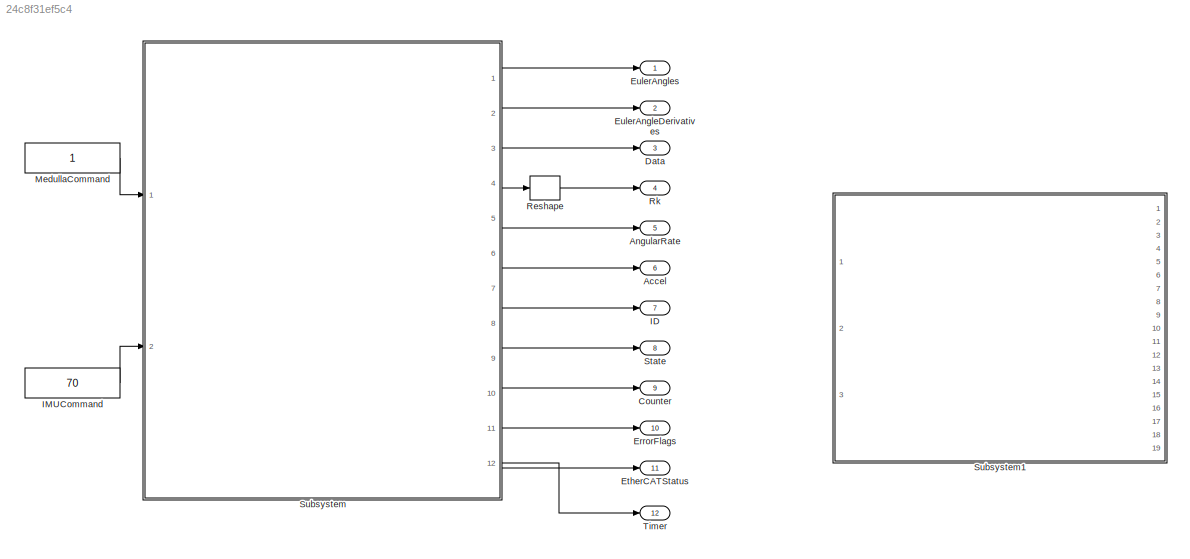
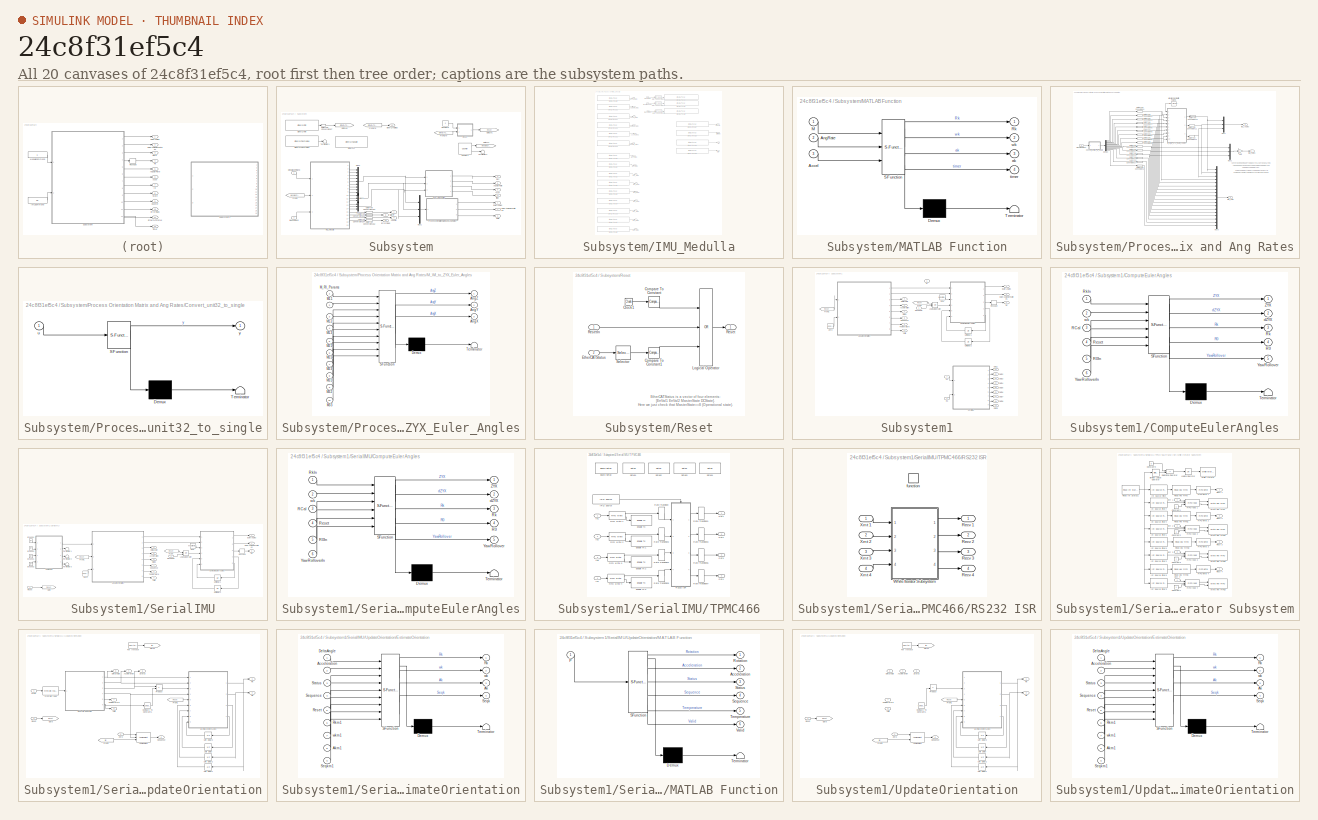
[diagram: thumbnail index - all 20 canvases of the model, root first then tree order]
MODEL slx_24c8f31ef5c4
KIND model
BLOCK [Outport] Accel
  IconDisplay = Port number
  Port = 6
BLOCK [Outport] AngularRate
  IconDisplay = Port number
  Port = 5
BLOCK [Outport] Counter
  IconDisplay = Port number
  Port = 9
BLOCK [Outport] Data
  IconDisplay = Port number
  Port = 3
BLOCK [Outport] ErrorFlags
  IconDisplay = Port number
  Port = 10
BLOCK [Outport] EtherCATStatus
  IconDisplay = Port number
  Port = 11
BLOCK [Outport] EulerAngleDerivatives
  IconDisplay = Port number
  Port = 2
BLOCK [Outport] EulerAngles
  IconDisplay = Port number
BLOCK [Outport] ID
  IconDisplay = Port number
  Port = 7
BLOCK [Constant] IMUCommand
  Value = 70
BLOCK [Constant] MedullaCommand
BLOCK [Reshape] Reshape
  Ports = [1, 1]
BLOCK [Outport] Rk
  IconDisplay = Port number
  Port = 4
BLOCK [Outport] State
  IconDisplay = Port number
  Port = 8
BLOCK [SubSystem] Subsystem
  FunctionWithSeparateData = off
  MaskHideContents = off
  MinAlgLoopOccurrences = off
  Opaque = off
  Ports = [2, 12]
  PropExecContextOutsideSubsystem = off
  RTWSystemCode = Auto
  RequestExecContextInheritance = off
BLOCK [Outport] Subsystem/Accel
  IconDisplay = Port number
  Port = 6
BLOCK [Outport] Subsystem/AngularRate
  IconDisplay = Port number
  Port = 5
BLOCK [Outport] Subsystem/Counter
  IconDisplay = Port number
  Port = 9
BLOCK [Reference] Subsystem/Counter2  REF=dspswit3/Counter
  CntDtype = double
  CountEvent = Free running
  CounterSize = User defined
  Direction = Up
  HitDtype = Logical
  HitValue = 32
  InitialCount = 0
  MaxCount = 65535
  Output = Count and Hit
  Ports = [0, 2]
  ResetInput = off
  SamplesPerFrame = 1
  SourceBlock = dspswit3/Counter
  SourceType = Counter
  Ts = .001
BLOCK [Outport] Subsystem/Data
  IconDisplay = Port number
  Port = 3
BLOCK [DataTypeConversion] Subsystem/Data Type Conversion152
  OutDataTypeStr = double
  RndMeth = Floor
  SaturateOnIntegerOverflow = off
BLOCK [DataTypeConversion] Subsystem/Data Type Conversion154
  OutDataTypeStr = double
  RndMeth = Floor
  SaturateOnIntegerOverflow = off
BLOCK [DataTypeConversion] Subsystem/Data Type Conversion161
  OutDataTypeStr = double
  RndMeth = Floor
  SaturateOnIntegerOverflow = off
BLOCK [DataTypeConversion] Subsystem/Data Type Conversion162
  OutDataTypeStr = double
  RndMeth = Floor
  SaturateOnIntegerOverflow = off
BLOCK [DataTypeConversion] Subsystem/Data Type Conversion97
  OutDataTypeStr = double
  RndMeth = Floor
  SaturateOnIntegerOverflow = off
BLOCK [Outport] Subsystem/ErrorFlags
  IconDisplay = Port number
  Port = 10
BLOCK [Reference] Subsystem/EtherCAT  REF=xpcethercatlib/EtherCAT Update 
  Ports = []
  Priority = 4
  SourceBlock = xpcethercatlib/EtherCAT Update
  SourceType = xpcethercat_update
  device_id = 0
  task_id_list = [1]
  task_priorities = [1500]
  task_rates = [1]
BLOCK [Reference] Subsystem/EtherCAT Init  REF=xpcethercatlib/EtherCAT Init 
  Ports = [0, 1]
  Priority = 0
  SourceBlock = xpcethercatlib/EtherCAT Init
  SourceType = xpcethercatinit
  config_file = 'microstrain-imu-box07-eni.xml'
  device_id = 0
  enaDC = on
  errRptLevel = 0
  pci_bus = 7
  pci_slot = 0
  sample_time = 0.001000
BLOCK [Reference] Subsystem/EtherCAT Rx Frames  REF=xpcethercatlib/EtherCAT Rx Frames 
  Ports = [0, 1]
  Priority = 1
  SourceBlock = xpcethercatlib/EtherCAT Rx Frames
  SourceType = xpcethercat_rcvframes
  device_id = 0
  sample_time = 0
BLOCK [Outport] Subsystem/EtherCATStatus
  IconDisplay = Port number
  Port = 11
BLOCK [Outport] Subsystem/EulerAngleDerivatives
  IconDisplay = Port number
  Port = 2
BLOCK [Outport] Subsystem/EulerAngles
  IconDisplay = Port number
BLOCK [From] Subsystem/From1
  GotoTag = MedullaCounter
BLOCK [From] Subsystem/From178
  GotoTag = EtherCATStatus
BLOCK [From] Subsystem/From179
  GotoTag = EtherCATStatus
BLOCK [Goto] Subsystem/Goto111
  GotoTag = MedullaCounter
BLOCK [Goto] Subsystem/Goto141
  GotoTag = Reset
BLOCK [Goto] Subsystem/Goto146
  GotoTag = EtherCATStatus
BLOCK [Outport] Subsystem/ID
  IconDisplay = Port number
  Port = 7
BLOCK [Inport] Subsystem/IMU Command
  IconDisplay = Port number
  Port = 2
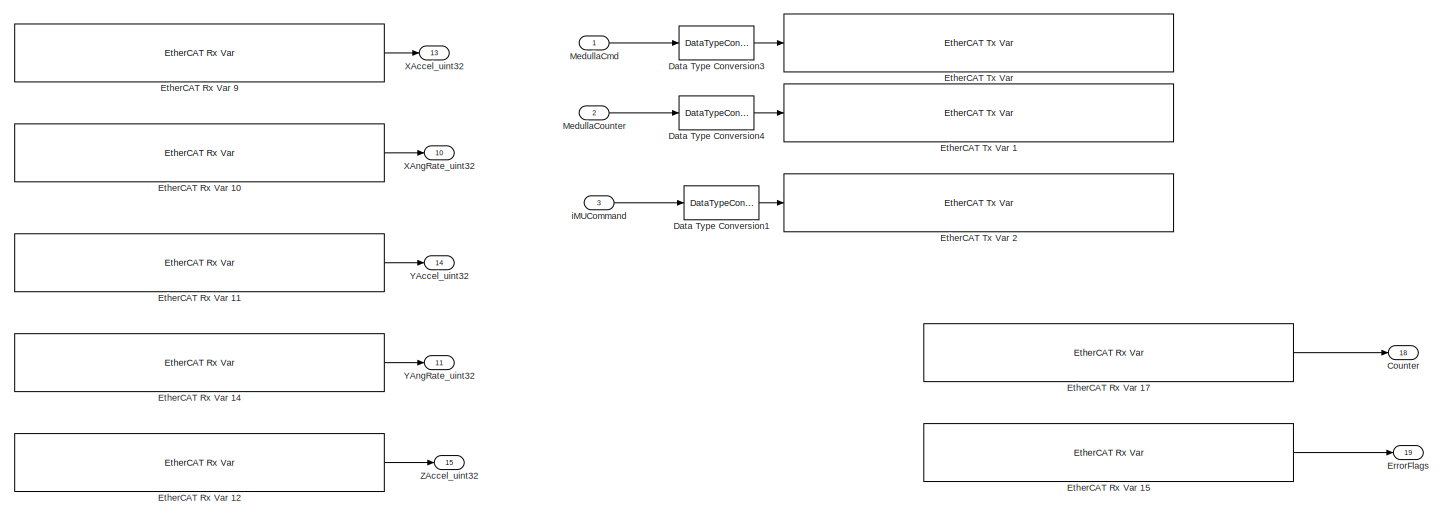
[diagram: Subsystem/IMU_Medulla - part 1/3, full width, top band]
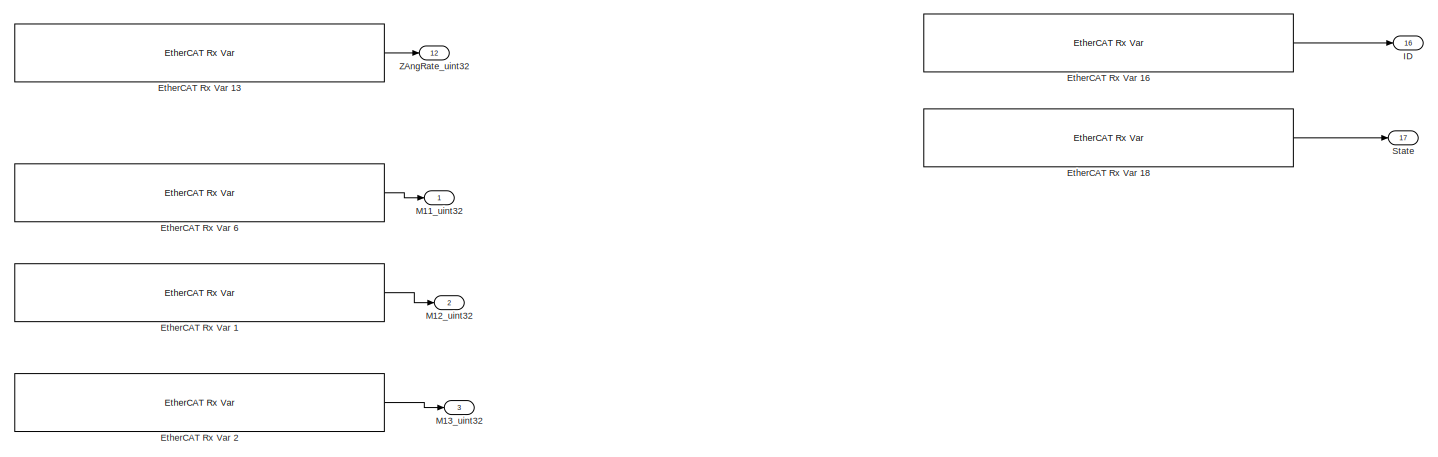
[diagram: Subsystem/IMU_Medulla - part 2/3, full width, middle band]
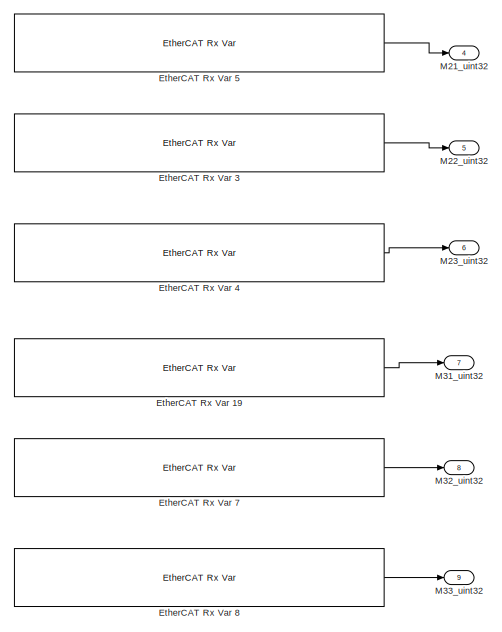
[diagram: Subsystem/IMU_Medulla - part 3/3, bottom left region]
BLOCK [SubSystem] Subsystem/IMU_Medulla
  FunctionWithSeparateData = off
  MaskHideContents = off
  MinAlgLoopOccurrences = off
  Opaque = off
  Ports = [3, 19]
  PropExecContextOutsideSubsystem = off
  RTWSystemCode = Auto
  RequestExecContextInheritance = off
BLOCK [Outport] Subsystem/IMU_Medulla/Counter
  IconDisplay = Port number
  Port = 18
BLOCK [DataTypeConversion] Subsystem/IMU_Medulla/Data Type Conversion1
  OutDataTypeStr = uint16
  RndMeth = Floor
  SaturateOnIntegerOverflow = off
BLOCK [DataTypeConversion] Subsystem/IMU_Medulla/Data Type Conversion3
  OutDataTypeStr = uint8
  RndMeth = Floor
  SaturateOnIntegerOverflow = off
BLOCK [DataTypeConversion] Subsystem/IMU_Medulla/Data Type Conversion4
  OutDataTypeStr = uint16
  RndMeth = Floor
  SaturateOnIntegerOverflow = off
BLOCK [Outport] Subsystem/IMU_Medulla/ErrorFlags
  IconDisplay = Port number
  Port = 19
BLOCK [Reference] Subsystem/IMU_Medulla/EtherCAT Rx Var 1  REF=xpcethercatlib/EtherCAT Rx Var 
  Ports = [0, 1]
  Priority = 2
  SourceBlock = xpcethercatlib/EtherCAT Rx Var
  SourceType = xpcethercat_rx_var
  device_id = 0
  sample_time = 0.001000
  sig_dim = 1
  sig_name = Box 7 (ATRIAS 2.1 Microstrain IMU (Medulla 1.5)).M.M12
  sig_offset = 720
  sig_type = uint32
  type_size = 32
BLOCK [Reference] Subsystem/IMU_Medulla/EtherCAT Rx Var 10  REF=xpcethercatlib/EtherCAT Rx Var 
  Ports = [0, 1]
  Priority = 2
  SourceBlock = xpcethercatlib/EtherCAT Rx Var
  SourceType = xpcethercat_rx_var
  device_id = 0
  sample_time = 0.001000
  sig_dim = 1
  sig_name = Box 7 (ATRIAS 2.1 Microstrain IMU (Medulla 1.5)).Xaxes.XAngRate
  sig_offset = 496
  sig_type = uint32
  type_size = 32
BLOCK [Reference] Subsystem/IMU_Medulla/EtherCAT Rx Var 11  REF=xpcethercatlib/EtherCAT Rx Var 
  Ports = [0, 1]
  Priority = 2
  SourceBlock = xpcethercatlib/EtherCAT Rx Var
  SourceType = xpcethercat_rx_var
  device_id = 0
  sample_time = 0.001000
  sig_dim = 1
  sig_name = Box 7 (ATRIAS 2.1 Microstrain IMU (Medulla 1.5)).Yaxes.YAccel
  sig_offset = 592
  sig_type = uint32
  type_size = 32
BLOCK [Reference] Subsystem/IMU_Medulla/EtherCAT Rx Var 12  REF=xpcethercatlib/EtherCAT Rx Var 
  Ports = [0, 1]
  Priority = 2
  SourceBlock = xpcethercatlib/EtherCAT Rx Var
  SourceType = xpcethercat_rx_var
  device_id = 0
  sample_time = 0.001000
  sig_dim = 1
  sig_name = Box 7 (ATRIAS 2.1 Microstrain IMU (Medulla 1.5)).Zaxes.ZAccel
  sig_offset = 656
  sig_type = uint32
  type_size = 32
BLOCK [Reference] Subsystem/IMU_Medulla/EtherCAT Rx Var 13  REF=xpcethercatlib/EtherCAT Rx Var 
  Ports = [0, 1]
  Priority = 2
  SourceBlock = xpcethercatlib/EtherCAT Rx Var
  SourceType = xpcethercat_rx_var
  device_id = 0
  sample_time = 0.001000
  sig_dim = 1
  sig_name = Box 7 (ATRIAS 2.1 Microstrain IMU (Medulla 1.5)).Zaxes.ZAngRate
  sig_offset = 624
  sig_type = uint32
  type_size = 32
BLOCK [Reference] Subsystem/IMU_Medulla/EtherCAT Rx Var 14  REF=xpcethercatlib/EtherCAT Rx Var 
  Ports = [0, 1]
  Priority = 2
  SourceBlock = xpcethercatlib/EtherCAT Rx Var
  SourceType = xpcethercat_rx_var
  device_id = 0
  sample_time = 0.001000
  sig_dim = 1
  sig_name = Box 7 (ATRIAS 2.1 Microstrain IMU (Medulla 1.5)).Yaxes.YAngRate
  sig_offset = 560
  sig_type = uint32
  type_size = 32
BLOCK [Reference] Subsystem/IMU_Medulla/EtherCAT Rx Var 15  REF=xpcethercatlib/EtherCAT Rx Var 
  Ports = [0, 1]
  Priority = 2
  SourceBlock = xpcethercatlib/EtherCAT Rx Var
  SourceType = xpcethercat_rx_var
  device_id = 0
  sample_time = 0.001000
  sig_dim = 1
  sig_name = Box 7 (ATRIAS 2.1 Microstrain IMU (Medulla 1.5)).uController Status.Error Flags
  sig_offset = 488
  sig_type = uint8
  type_size = 8
BLOCK [Reference] Subsystem/IMU_Medulla/EtherCAT Rx Var 16  REF=xpcethercatlib/EtherCAT Rx Var 
  Ports = [0, 1]
  Priority = 2
  SourceBlock = xpcethercatlib/EtherCAT Rx Var
  SourceType = xpcethercat_rx_var
  device_id = 0
  sample_time = 0.001000
  sig_dim = 1
  sig_name = Box 7 (ATRIAS 2.1 Microstrain IMU (Medulla 1.5)).uController Status.ID
  sig_offset = 464
  sig_type = uint8
  type_size = 8
BLOCK [Reference] Subsystem/IMU_Medulla/EtherCAT Rx Var 17  REF=xpcethercatlib/EtherCAT Rx Var 
  Ports = [0, 1]
  Priority = 2
  SourceBlock = xpcethercatlib/EtherCAT Rx Var
  SourceType = xpcethercat_rx_var
  device_id = 0
  sample_time = 0.001000
  sig_dim = 1
  sig_name = Box 7 (ATRIAS 2.1 Microstrain IMU (Medulla 1.5)).uController Status.Counter
  sig_offset = 480
  sig_type = uint8
  type_size = 8
BLOCK [Reference] Subsystem/IMU_Medulla/EtherCAT Rx Var 18  REF=xpcethercatlib/EtherCAT Rx Var 
  Ports = [0, 1]
  Priority = 2
  SourceBlock = xpcethercatlib/EtherCAT Rx Var
  SourceType = xpcethercat_rx_var
  device_id = 0
  sample_time = 0.001000
  sig_dim = 1
  sig_name = Box 7 (ATRIAS 2.1 Microstrain IMU (Medulla 1.5)).uController Status.State
  sig_offset = 472
  sig_type = uint8
  type_size = 8
BLOCK [Reference] Subsystem/IMU_Medulla/EtherCAT Rx Var 19  REF=xpcethercatlib/EtherCAT Rx Var 
  Ports = [0, 1]
  Priority = 2
  SourceBlock = xpcethercatlib/EtherCAT Rx Var
  SourceType = xpcethercat_rx_var
  device_id = 0
  sample_time = 0.001000
  sig_dim = 1
  sig_name = Box 7 (ATRIAS 2.1 Microstrain IMU (Medulla 1.5)).M.M31
  sig_offset = 880
  sig_type = uint32
  type_size = 32
BLOCK [Reference] Subsystem/IMU_Medulla/EtherCAT Rx Var 2  REF=xpcethercatlib/EtherCAT Rx Var 
  Ports = [0, 1]
  Priority = 2
  SourceBlock = xpcethercatlib/EtherCAT Rx Var
  SourceType = xpcethercat_rx_var
  device_id = 0
  sample_time = 0.001000
  sig_dim = 1
  sig_name = Box 7 (ATRIAS 2.1 Microstrain IMU (Medulla 1.5)).M.M13
  sig_offset = 752
  sig_type = uint32
  type_size = 32
BLOCK [Reference] Subsystem/IMU_Medulla/EtherCAT Rx Var 3  REF=xpcethercatlib/EtherCAT Rx Var 
  Ports = [0, 1]
  Priority = 2
  SourceBlock = xpcethercatlib/EtherCAT Rx Var
  SourceType = xpcethercat_rx_var
  device_id = 0
  sample_time = 0.001000
  sig_dim = 1
  sig_name = Box 7 (ATRIAS 2.1 Microstrain IMU (Medulla 1.5)).M.M22
  sig_offset = 816
  sig_type = uint32
  type_size = 32
BLOCK [Reference] Subsystem/IMU_Medulla/EtherCAT Rx Var 4  REF=xpcethercatlib/EtherCAT Rx Var 
  Ports = [0, 1]
  Priority = 2
  SourceBlock = xpcethercatlib/EtherCAT Rx Var
  SourceType = xpcethercat_rx_var
  device_id = 0
  sample_time = 0.001000
  sig_dim = 1
  sig_name = Box 7 (ATRIAS 2.1 Microstrain IMU (Medulla 1.5)).M.M23
  sig_offset = 848
  sig_type = uint32
  type_size = 32
BLOCK [Reference] Subsystem/IMU_Medulla/EtherCAT Rx Var 5  REF=xpcethercatlib/EtherCAT Rx Var 
  Ports = [0, 1]
  Priority = 2
  SourceBlock = xpcethercatlib/EtherCAT Rx Var
  SourceType = xpcethercat_rx_var
  device_id = 0
  sample_time = 0.001000
  sig_dim = 1
  sig_name = Box 7 (ATRIAS 2.1 Microstrain IMU (Medulla 1.5)).M.M21
  sig_offset = 784
  sig_type = uint32
  type_size = 32
BLOCK [Reference] Subsystem/IMU_Medulla/EtherCAT Rx Var 6  REF=xpcethercatlib/EtherCAT Rx Var 
  Ports = [0, 1]
  Priority = 2
  SourceBlock = xpcethercatlib/EtherCAT Rx Var
  SourceType = xpcethercat_rx_var
  device_id = 0
  sample_time = 0.001000
  sig_dim = 1
  sig_name = Box 7 (ATRIAS 2.1 Microstrain IMU (Medulla 1.5)).M.M11
  sig_offset = 688
  sig_type = uint32
  type_size = 32
BLOCK [Reference] Subsystem/IMU_Medulla/EtherCAT Rx Var 7  REF=xpcethercatlib/EtherCAT Rx Var 
  Ports = [0, 1]
  Priority = 2
  SourceBlock = xpcethercatlib/EtherCAT Rx Var
  SourceType = xpcethercat_rx_var
  device_id = 0
  sample_time = 0.001000
  sig_dim = 1
  sig_name = Box 7 (ATRIAS 2.1 Microstrain IMU (Medulla 1.5)).M.M32
  sig_offset = 912
  sig_type = uint32
  type_size = 32
BLOCK [Reference] Subsystem/IMU_Medulla/EtherCAT Rx Var 8  REF=xpcethercatlib/EtherCAT Rx Var 
  Ports = [0, 1]
  Priority = 2
  SourceBlock = xpcethercatlib/EtherCAT Rx Var
  SourceType = xpcethercat_rx_var
  device_id = 0
  sample_time = 0.001000
  sig_dim = 1
  sig_name = Box 7 (ATRIAS 2.1 Microstrain IMU (Medulla 1.5)).M.M33
  sig_offset = 944
  sig_type = uint32
  type_size = 32
BLOCK [Reference] Subsystem/IMU_Medulla/EtherCAT Rx Var 9  REF=xpcethercatlib/EtherCAT Rx Var 
  Ports = [0, 1]
  Priority = 2
  SourceBlock = xpcethercatlib/EtherCAT Rx Var
  SourceType = xpcethercat_rx_var
  device_id = 0
  sample_time = 0.001000
  sig_dim = 1
  sig_name = Box 7 (ATRIAS 2.1 Microstrain IMU (Medulla 1.5)).Xaxes.XAccel
  sig_offset = 528
  sig_type = uint32
  type_size = 32
BLOCK [Reference] Subsystem/IMU_Medulla/EtherCAT Tx Var   REF=xpcethercatlib/EtherCAT Tx Var 
  Ports = [1]
  Priority = 3
  SourceBlock = xpcethercatlib/EtherCAT Tx Var
  SourceType = xpcethercat_tx_var
  device_id = 0
  sample_time = 0.001000
  sig_dim = 1
  sig_name = Box 7 (ATRIAS 2.1 Microstrain IMU (Medulla 1.5)).uControllerInput.Command
  sig_offset = 464
  sig_type = uint8
  type_size = 8
BLOCK [Reference] Subsystem/IMU_Medulla/EtherCAT Tx Var 1  REF=xpcethercatlib/EtherCAT Tx Var 
  Ports = [1]
  Priority = 3
  SourceBlock = xpcethercatlib/EtherCAT Tx Var
  SourceType = xpcethercat_tx_var
  device_id = 0
  sample_time = 0.001000
  sig_dim = 1
  sig_name = Box 7 (ATRIAS 2.1 Microstrain IMU (Medulla 1.5)).uControllerInput.Counter
  sig_offset = 472
  sig_type = uint16
  type_size = 16
BLOCK [Reference] Subsystem/IMU_Medulla/EtherCAT Tx Var 2  REF=xpcethercatlib/EtherCAT Tx Var 
  Ports = [1]
  Priority = 3
  SourceBlock = xpcethercatlib/EtherCAT Tx Var
  SourceType = xpcethercat_tx_var
  device_id = 0
  sample_time = 0.001000
  sig_dim = 1
  sig_name = Box 7 (ATRIAS 2.1 Microstrain IMU (Medulla 1.5)).uControllerInput.IMU_cmd
  sig_offset = 488
  sig_type = uint16
  type_size = 16
BLOCK [Outport] Subsystem/IMU_Medulla/ID
  IconDisplay = Port number
  Port = 16
BLOCK [Outport] Subsystem/IMU_Medulla/M11_uint32
  IconDisplay = Port number
BLOCK [Outport] Subsystem/IMU_Medulla/M12_uint32
  IconDisplay = Port number
  Port = 2
BLOCK [Outport] Subsystem/IMU_Medulla/M13_uint32
  IconDisplay = Port number
  Port = 3
BLOCK [Outport] Subsystem/IMU_Medulla/M21_uint32
  IconDisplay = Port number
  Port = 4
BLOCK [Outport] Subsystem/IMU_Medulla/M22_uint32
  IconDisplay = Port number
  Port = 5
BLOCK [Outport] Subsystem/IMU_Medulla/M23_uint32
  IconDisplay = Port number
  Port = 6
BLOCK [Outport] Subsystem/IMU_Medulla/M31_uint32
  IconDisplay = Port number
  Port = 7
BLOCK [Outport] Subsystem/IMU_Medulla/M32_uint32
  IconDisplay = Port number
  Port = 8
BLOCK [Outport] Subsystem/IMU_Medulla/M33_uint32
  IconDisplay = Port number
  Port = 9
BLOCK [Inport] Subsystem/IMU_Medulla/MedullaCmd
  IconDisplay = Port number
BLOCK [Inport] Subsystem/IMU_Medulla/MedullaCounter
  IconDisplay = Port number
  Port = 2
BLOCK [Outport] Subsystem/IMU_Medulla/State
  IconDisplay = Port number
  Port = 17
BLOCK [Outport] Subsystem/IMU_Medulla/XAccel_uint32
  IconDisplay = Port number
  Port = 13
BLOCK [Outport] Subsystem/IMU_Medulla/XAngRate_uint32
  IconDisplay = Port number
  Port = 10
BLOCK [Outport] Subsystem/IMU_Medulla/YAccel_uint32
  IconDisplay = Port number
  Port = 14
BLOCK [Outport] Subsystem/IMU_Medulla/YAngRate_uint32
  IconDisplay = Port number
  Port = 11
BLOCK [Outport] Subsystem/IMU_Medulla/ZAccel_uint32
  IconDisplay = Port number
  Port = 15
BLOCK [Outport] Subsystem/IMU_Medulla/ZAngRate_uint32
  IconDisplay = Port number
  Port = 12
BLOCK [Inport] Subsystem/IMU_Medulla/iMUCommand
  IconDisplay = Port number
  Port = 3
BLOCK [SubSystem] Subsystem/MATLAB Function
  ErrorFcn = Stateflow.Translate.translate
  FunctionWithSeparateData = off
  MaskHideContents = off
  MinAlgLoopOccurrences = off
  Opaque = off
  PermitHierarchicalResolution = ExplicitOnly
  Ports = [3, 4]
  PropExecContextOutsideSubsystem = off
  RTWSystemCode = Auto
  RequestExecContextInheritance = off
  SFBlockType = MATLAB Function
  TreatAsAtomicUnit = on
BLOCK [Demux] Subsystem/MATLAB Function/ Demux 
  Outputs = 1
  Ports = [1, 1]
BLOCK [S-Function] Subsystem/MATLAB Function/ SFunction 
  EnableBusSupport = on
  FunctionName = sf_sfun
  PortCounts = [3 5]
  Ports = [3, 5]
  Tag = Stateflow S-Function MicrostrainIMUTest02 3
BLOCK [Terminator] Subsystem/MATLAB Function/ Terminator 
BLOCK [Inport] Subsystem/MATLAB Function/Accel
  IconDisplay = Port number
  Port = 3
BLOCK [Inport] Subsystem/MATLAB Function/AngRate
  IconDisplay = Port number
  Port = 2
BLOCK [Inport] Subsystem/MATLAB Function/M
  IconDisplay = Port number
BLOCK [Outport] Subsystem/MATLAB Function/Rk
  IconDisplay = Port number
BLOCK [Outport] Subsystem/MATLAB Function/ak
  IconDisplay = Port number
  Port = 3
BLOCK [Outport] Subsystem/MATLAB Function/timer
  IconDisplay = Port number
  Port = 4
BLOCK [Outport] Subsystem/MATLAB Function/wk
  IconDisplay = Port number
  Port = 2
BLOCK [Inport] Subsystem/Medulla Command
  IconDisplay = Port number
BLOCK [Mux] Subsystem/Mux1
  DisplayOption = bar
  Inputs = 3
  Ports = [3, 1]
BLOCK [Mux] Subsystem/Mux2
  DisplayOption = bar
  Inputs = 9
  Ports = [9, 1]
BLOCK [Mux] Subsystem/Mux3
  DisplayOption = bar
  Inputs = 3
  Ports = [3, 1]
BLOCK [Mux] Subsystem/Mux4
  DisplayOption = bar
  Inputs = 3
  Ports = [3, 1]
BLOCK [SubSystem] Subsystem/Process Orientation Matrix and Ang Rates
  FunctionWithSeparateData = off
  MaskHideContents = off
  MinAlgLoopOccurrences = off
  Opaque = off
  Ports = [1, 3]
  PropExecContextOutsideSubsystem = off
  RTWSystemCode = Auto
  RequestExecContextInheritance = off
BLOCK [SubSystem] Subsystem/Process Orientation Matrix and Ang Rates/Convert_unit32_to_single
  ErrorFcn = Stateflow.Translate.translate
  FunctionWithSeparateData = off
  MaskHideContents = off
  MinAlgLoopOccurrences = off
  Opaque = off
  PermitHierarchicalResolution = ExplicitOnly
  Ports = [1, 1]
  PropExecContextOutsideSubsystem = off
  RTWSystemCode = Auto
  RequestExecContextInheritance = off
  SFBlockType = MATLAB Function
  TreatAsAtomicUnit = on
BLOCK [Demux] Subsystem/Process Orientation Matrix and Ang Rates/Convert_unit32_to_single/ Demux 
  Outputs = 1
  Ports = [1, 1]
BLOCK [S-Function] Subsystem/Process Orientation Matrix and Ang Rates/Convert_unit32_to_single/ SFunction 
  EnableBusSupport = on
  FunctionName = sf_sfun
  PortCounts = [1 2]
  Ports = [1, 2]
  Tag = Stateflow S-Function MicrostrainIMUTest02 32
BLOCK [Terminator] Subsystem/Process Orientation Matrix and Ang Rates/Convert_unit32_to_single/ Terminator 
BLOCK [Inport] Subsystem/Process Orientation Matrix and Ang Rates/Convert_unit32_to_single/u
  IconDisplay = Port number
BLOCK [Outport] Subsystem/Process Orientation Matrix and Ang Rates/Convert_unit32_to_single/y
  IconDisplay = Port number
BLOCK [DataTypeConversion] Subsystem/Process Orientation Matrix and Ang Rates/Data Type Conversion1
  OutDataTypeStr = double
  RndMeth = Floor
  SaturateOnIntegerOverflow = off
BLOCK [DataTypeConversion] Subsystem/Process Orientation Matrix and Ang Rates/Data Type Conversion10
  OutDataTypeStr = double
  RndMeth = Floor
  SaturateOnIntegerOverflow = off
BLOCK [DataTypeConversion] Subsystem/Process Orientation Matrix and Ang Rates/Data Type Conversion11
  OutDataTypeStr = double
  RndMeth = Floor
  SaturateOnIntegerOverflow = off
BLOCK [DataTypeConversion] Subsystem/Process Orientation Matrix and Ang Rates/Data Type Conversion12
  OutDataTypeStr = double
  RndMeth = Floor
  SaturateOnIntegerOverflow = off
BLOCK [DataTypeConversion] Subsystem/Process Orientation Matrix and Ang Rates/Data Type Conversion13
  OutDataTypeStr = double
  RndMeth = Floor
  SaturateOnIntegerOverflow = off
BLOCK [DataTypeConversion] Subsystem/Process Orientation Matrix and Ang Rates/Data Type Conversion14
  OutDataTypeStr = double
  RndMeth = Floor
  SaturateOnIntegerOverflow = off
BLOCK [DataTypeConversion] Subsystem/Process Orientation Matrix and Ang Rates/Data Type Conversion15
  OutDataTypeStr = double
  RndMeth = Floor
  SaturateOnIntegerOverflow = off
BLOCK [DataTypeConversion] Subsystem/Process Orientation Matrix and Ang Rates/Data Type Conversion16
  OutDataTypeStr = double
  RndMeth = Floor
  SaturateOnIntegerOverflow = off
BLOCK [DataTypeConversion] Subsystem/Process Orientation Matrix and Ang Rates/Data Type Conversion17
  OutDataTypeStr = double
  RndMeth = Floor
  SaturateOnIntegerOverflow = off
BLOCK [DataTypeConversion] Subsystem/Process Orientation Matrix and Ang Rates/Data Type Conversion18
  OutDataTypeStr = double
  RndMeth = Floor
  SaturateOnIntegerOverflow = off
BLOCK [DataTypeConversion] Subsystem/Process Orientation Matrix and Ang Rates/Data Type Conversion2
  OutDataTypeStr = double
  RndMeth = Floor
  SaturateOnIntegerOverflow = off
BLOCK [DataTypeConversion] Subsystem/Process Orientation Matrix and Ang Rates/Data Type Conversion3
  OutDataTypeStr = double
  RndMeth = Floor
  SaturateOnIntegerOverflow = off
BLOCK [DataTypeConversion] Subsystem/Process Orientation Matrix and Ang Rates/Data Type Conversion4
  OutDataTypeStr = double
  RndMeth = Floor
  SaturateOnIntegerOverflow = off
BLOCK [DataTypeConversion] Subsystem/Process Orientation Matrix and Ang Rates/Data Type Conversion5
  OutDataTypeStr = double
  RndMeth = Floor
  SaturateOnIntegerOverflow = off
BLOCK [DataTypeConversion] Subsystem/Process Orientation Matrix and Ang Rates/Data Type Conversion6
  OutDataTypeStr = double
  RndMeth = Floor
  SaturateOnIntegerOverflow = off
BLOCK [DataTypeConversion] Subsystem/Process Orientation Matrix and Ang Rates/Data Type Conversion7
  OutDataTypeStr = double
  RndMeth = Floor
  SaturateOnIntegerOverflow = off
BLOCK [DataTypeConversion] Subsystem/Process Orientation Matrix and Ang Rates/Data Type Conversion8
  OutDataTypeStr = double
  RndMeth = Floor
  SaturateOnIntegerOverflow = off
BLOCK [DataTypeConversion] Subsystem/Process Orientation Matrix and Ang Rates/Data Type Conversion9
  OutDataTypeStr = double
  RndMeth = Floor
  SaturateOnIntegerOverflow = off
BLOCK [Demux] Subsystem/Process Orientation Matrix and Ang Rates/Demux
  DisplayOption = bar
  Outputs = 15
  Ports = [1, 15]
BLOCK [Gain] Subsystem/Process Orientation Matrix and Ang Rates/Gain
  Gain = -1
  OutDataTypeStr = Inherit: Inherit via internal rule
  ParamDataTypeStr = Inherit: Inherit via internal rule
  SaturateOnIntegerOverflow = off
BLOCK [Outport] Subsystem/Process Orientation Matrix and Ang Rates/IMU_Angles
  IconDisplay = Port number
BLOCK [Outport] Subsystem/Process Orientation Matrix and Ang Rates/IMU_Rates
  IconDisplay = Port number
  Port = 2
BLOCK [Outport] Subsystem/Process Orientation Matrix and Ang Rates/IMU_data
  IconDisplay = Port number
  Port = 3
BLOCK [SubSystem] Subsystem/Process Orientation Matrix and Ang Rates/M_WI_to_ZYX_Euler_Angles
  ErrorFcn = Stateflow.Translate.translate
  FunctionWithSeparateData = off
  MaskHideContents = off
  MinAlgLoopOccurrences = off
  Opaque = off
  PermitHierarchicalResolution = ExplicitOnly
  Ports = [10, 3]
  PropExecContextOutsideSubsystem = off
  RTWSystemCode = Auto
  RequestExecContextInheritance = off
  SFBlockType = MATLAB Function
  TreatAsAtomicUnit = on
BLOCK [Demux] Subsystem/Process Orientation Matrix and Ang Rates/M_WI_to_ZYX_Euler_Angles/ Demux 
  Outputs = 1
  Ports = [1, 1]
BLOCK [S-Function] Subsystem/Process Orientation Matrix and Ang Rates/M_WI_to_ZYX_Euler_Angles/ SFunction 
  EnableBusSupport = on
  FunctionName = sf_sfun
  PortCounts = [10 4]
  Ports = [10, 4]
  Tag = Stateflow S-Function MicrostrainIMUTest02 33
BLOCK [Terminator] Subsystem/Process Orientation Matrix and Ang Rates/M_WI_to_ZYX_Euler_Angles/ Terminator 
BLOCK [Outport] Subsystem/Process Orientation Matrix and Ang Rates/M_WI_to_ZYX_Euler_Angles/AngX
  IconDisplay = Port number
  Port = 3
BLOCK [Outport] Subsystem/Process Orientation Matrix and Ang Rates/M_WI_to_ZYX_Euler_Angles/AngY
  IconDisplay = Port number
  Port = 2
BLOCK [Outport] Subsystem/Process Orientation Matrix and Ang Rates/M_WI_to_ZYX_Euler_Angles/AngZ
  IconDisplay = Port number
BLOCK [Inport] Subsystem/Process Orientation Matrix and Ang Rates/M_WI_to_ZYX_Euler_Angles/M11
  IconDisplay = Port number
  Port = 2
BLOCK [Inport] Subsystem/Process Orientation Matrix and Ang Rates/M_WI_to_ZYX_Euler_Angles/M12
  IconDisplay = Port number
  Port = 3
BLOCK [Inport] Subsystem/Process Orientation Matrix and Ang Rates/M_WI_to_ZYX_Euler_Angles/M13
  IconDisplay = Port number
  Port = 4
BLOCK [Inport] Subsystem/Process Orientation Matrix and Ang Rates/M_WI_to_ZYX_Euler_Angles/M21
  IconDisplay = Port number
  Port = 5
BLOCK [Inport] Subsystem/Process Orientation Matrix and Ang Rates/M_WI_to_ZYX_Euler_Angles/M22
  IconDisplay = Port number
  Port = 6
BLOCK [Inport] Subsystem/Process Orientation Matrix and Ang Rates/M_WI_to_ZYX_Euler_Angles/M23
  IconDisplay = Port number
  Port = 7
BLOCK [Inport] Subsystem/Process Orientation Matrix and Ang Rates/M_WI_to_ZYX_Euler_Angles/M31
  IconDisplay = Port number
  Port = 8
BLOCK [Inport] Subsystem/Process Orientation Matrix and Ang Rates/M_WI_to_ZYX_Euler_Angles/M32
  IconDisplay = Port number
  Port = 9
BLOCK [Inport] Subsystem/Process Orientation Matrix and Ang Rates/M_WI_to_ZYX_Euler_Angles/M33
  IconDisplay = Port number
  Port = 10
BLOCK [Inport] Subsystem/Process Orientation Matrix and Ang Rates/M_WI_to_ZYX_Euler_Angles/M_RI_Params
  IconDisplay = Port number
BLOCK [Inport] Subsystem/Process Orientation Matrix and Ang Rates/MedullaOutput
  IconDisplay = Port number
BLOCK [Constant] Subsystem/Process Orientation Matrix and Ang Rates/MisalignmentMatrixParams
  Value = IMU_Alignment_Params
BLOCK [Mux] Subsystem/Process Orientation Matrix and Ang Rates/Mux1
  DisplayOption = bar
  Inputs = 3
  Ports = [3, 1]
BLOCK [Mux] Subsystem/Process Orientation Matrix and Ang Rates/Mux2
  DisplayOption = bar
  Inputs = 3
  Ports = [3, 1]
BLOCK [Mux] Subsystem/Process Orientation Matrix and Ang Rates/Mux3
  DisplayOption = bar
  Inputs = 18
  Ports = [18, 1]
BLOCK [SubSystem] Subsystem/Reset
  FunctionWithSeparateData = off
  MaskHideContents = off
  MinAlgLoopOccurrences = off
  Opaque = off
  Ports = [2, 1]
  PropExecContextOutsideSubsystem = off
  RTWSystemCode = Auto
  RequestExecContextInheritance = off
BLOCK [Clock] Subsystem/Reset/Clock1
BLOCK [Reference] Subsystem/Reset/Compare To Constant  REF=simulink/Logic and Bit
Operations/Compare
To Constant
  OutDataTypeStr = uint8
  Ports = [1, 1]
  SourceBlock = simulink/Logic and Bit\nOperations/Compare\nTo Constant
  SourceType = Compare To Constant
  ZeroCross = on
  const = 2.0
  relop = <=
BLOCK [Reference] Subsystem/Reset/Compare To Constant1  REF=simulink/Logic and Bit
Operations/Compare
To Constant
  OutDataTypeStr = uint8
  Ports = [1, 1]
  SourceBlock = simulink/Logic and Bit\nOperations/Compare\nTo Constant
  SourceType = Compare To Constant
  ZeroCross = on
  const = 8
  relop = ~=
BLOCK [Inport] Subsystem/Reset/EtherCATStatus
  IconDisplay = Port number
  Port = 2
BLOCK [Logic] Subsystem/Reset/Logical Operator
  AllPortsSameDT = off
  Inputs = 3
  Operator = OR
  OutDataTypeStr = boolean
  Ports = [3, 1]
BLOCK [Outport] Subsystem/Reset/Reset
  IconDisplay = Port number
BLOCK [Inport] Subsystem/Reset/ResetIn
  IconDisplay = Port number
BLOCK [Selector] Subsystem/Reset/Selector
  IndexOptions = Index vector (dialog)
  Indices = [3]
  InputPortWidth = 4
  OutputSizes = 1
  Ports = [1, 1]
BLOCK [Constant] Subsystem/ResetDAQ
  Value = 0
BLOCK [Outport] Subsystem/Rk1
  IconDisplay = Port number
  Port = 4
BLOCK [Outport] Subsystem/State
  IconDisplay = Port number
  Port = 8
BLOCK [Terminator] Subsystem/Terminator1
BLOCK [Terminator] Subsystem/Terminator2
BLOCK [Outport] Subsystem/timer
  IconDisplay = Port number
  Port = 12
BLOCK [SubSystem] Subsystem1
  Commented = on
  FunctionWithSeparateData = off
  MaskHideContents = off
  MinAlgLoopOccurrences = off
  Opaque = off
  Ports = [3, 19]
  PropExecContextOutsideSubsystem = off
  RTWSystemCode = Auto
  RequestExecContextInheritance = off
BLOCK [Outport] Subsystem1/Acceleration
  IconDisplay = Port number
  Port = 6
BLOCK [SubSystem] Subsystem1/ComputeEulerAngles
  ErrorFcn = Stateflow.Translate.translate
  FunctionWithSeparateData = off
  MaskHideContents = off
  MinAlgLoopOccurrences = off
  Opaque = off
  PermitHierarchicalResolution = ExplicitOnly
  Ports = [6, 5]
  PropExecContextOutsideSubsystem = off
  RTWSystemCode = Auto
  RequestExecContextInheritance = off
  SFBlockType = MATLAB Function
  TreatAsAtomicUnit = on
BLOCK [Demux] Subsystem1/ComputeEulerAngles/ Demux 
  Outputs = 1
  Ports = [1, 1]
BLOCK [S-Function] Subsystem1/ComputeEulerAngles/ SFunction 
  EnableBusSupport = on
  FunctionName = sf_sfun
  PortCounts = [6 6]
  Ports = [6, 6]
  Tag = Stateflow S-Function MicrostrainIMUTest02 5
BLOCK [Terminator] Subsystem1/ComputeEulerAngles/ Terminator 
BLOCK [Outport] Subsystem1/ComputeEulerAngles/R0
  IconDisplay = Port number
  Port = 4
BLOCK [Inport] Subsystem1/ComputeEulerAngles/R0In
  IconDisplay = Port number
  Port = 5
BLOCK [Inport] Subsystem1/ComputeEulerAngles/RCal
  IconDisplay = Port number
  Port = 3
BLOCK [Inport] Subsystem1/ComputeEulerAngles/Reset
  IconDisplay = Port number
  Port = 4
BLOCK [Outport] Subsystem1/ComputeEulerAngles/Rk
  IconDisplay = Port number
  Port = 3
BLOCK [Inport] Subsystem1/ComputeEulerAngles/RkIn
  IconDisplay = Port number
BLOCK [Outport] Subsystem1/ComputeEulerAngles/YawRollover
  IconDisplay = Port number
  Port = 5
BLOCK [Inport] Subsystem1/ComputeEulerAngles/YawRolloverIn
  IconDisplay = Port number
  Port = 6
BLOCK [Outport] Subsystem1/ComputeEulerAngles/ZYX
  IconDisplay = Port number
BLOCK [Outport] Subsystem1/ComputeEulerAngles/dZYX
  IconDisplay = Port number
  Port = 2
BLOCK [Inport] Subsystem1/ComputeEulerAngles/wk
  IconDisplay = Port number
  Port = 2
BLOCK [Outport] Subsystem1/DeltaAngle
  IconDisplay = Port number
  Port = 4
BLOCK [Outport] Subsystem1/EulerAngleDerivatives
  IconDisplay = Port number
  Port = 3
BLOCK [Outport] Subsystem1/EulerAngles
  IconDisplay = Port number
  Port = 2
BLOCK [From] Subsystem1/From
  GotoTag = Reset
BLOCK [From] Subsystem1/From1
  GotoTag = Reset
BLOCK [Inport] Subsystem1/In2
  IconDisplay = Port number
  Port = 2
BLOCK [Inport] Subsystem1/In3
  IconDisplay = Port number
  Port = 3
BLOCK [Logic] Subsystem1/Logical Operator
  AllPortsSameDT = off
  Operator = OR
  OutDataTypeStr = boolean
  Ports = [2, 1]
BLOCK [Outport] Subsystem1/M
  IconDisplay = Port number
BLOCK [Outport] Subsystem1/Out11
  IconDisplay = Port number
  Port = 11
BLOCK [Outport] Subsystem1/Out12
  IconDisplay = Port number
  Port = 12
BLOCK [Outport] Subsystem1/Out13
  IconDisplay = Port number
  Port = 13
BLOCK [Outport] Subsystem1/Out14
  IconDisplay = Port number
  Port = 14
BLOCK [Outport] Subsystem1/Out15
  IconDisplay = Port number
  Port = 15
BLOCK [Outport] Subsystem1/Out16
  IconDisplay = Port number
  Port = 16
BLOCK [Outport] Subsystem1/Out17
  IconDisplay = Port number
  Port = 17
BLOCK [Outport] Subsystem1/Out18
  IconDisplay = Port number
  Port = 18
BLOCK [Outport] Subsystem1/Out19
  IconDisplay = Port number
  Port = 19
BLOCK [Constant] Subsystem1/RCal
  Value = MicrostrainOrientationCal
BLOCK [Inport] Subsystem1/ResetYaw
  IconDisplay = Port number
BLOCK [Reshape] Subsystem1/Reshape
  Ports = [1, 1]
BLOCK [Outport] Subsystem1/Rk
  IconDisplay = Port number
  Port = 5
BLOCK [Outport] Subsystem1/Sequence
  IconDisplay = Port number
  Port = 8
BLOCK [SubSystem] Subsystem1/SerialIMU
  Commented = on
  FunctionWithSeparateData = off
  MaskHideContents = off
  MinAlgLoopOccurrences = off
  Opaque = off
  Ports = [2, 9]
  PropExecContextOutsideSubsystem = off
  RTWSystemCode = Auto
  RequestExecContextInheritance = off
BLOCK [Outport] Subsystem1/SerialIMU/Acceleration
  IconDisplay = Port number
  Port = 5
BLOCK [SubSystem] Subsystem1/SerialIMU/ComputeEulerAngles
  ErrorFcn = Stateflow.Translate.translate
  FunctionWithSeparateData = off
  MaskHideContents = off
  MinAlgLoopOccurrences = off
  Opaque = off
  PermitHierarchicalResolution = ExplicitOnly
  Ports = [6, 5]
  PropExecContextOutsideSubsystem = off
  RTWSystemCode = Auto
  RequestExecContextInheritance = off
  SFBlockType = MATLAB Function
  TreatAsAtomicUnit = on
BLOCK [Demux] Subsystem1/SerialIMU/ComputeEulerAngles/ Demux 
  Outputs = 1
  Ports = [1, 1]
BLOCK [S-Function] Subsystem1/SerialIMU/ComputeEulerAngles/ SFunction 
  EnableBusSupport = on
  FunctionName = sf_sfun
  PortCounts = [6 6]
  Ports = [6, 6]
  Tag = Stateflow S-Function MicrostrainIMUTest02 21
BLOCK [Terminator] Subsystem1/SerialIMU/ComputeEulerAngles/ Terminator 
BLOCK [Outport] Subsystem1/SerialIMU/ComputeEulerAngles/R0
  IconDisplay = Port number
  Port = 4
BLOCK [Inport] Subsystem1/SerialIMU/ComputeEulerAngles/R0In
  IconDisplay = Port number
  Port = 5
BLOCK [Inport] Subsystem1/SerialIMU/ComputeEulerAngles/RCal
  IconDisplay = Port number
  Port = 3
BLOCK [Inport] Subsystem1/SerialIMU/ComputeEulerAngles/Reset
  IconDisplay = Port number
  Port = 4
BLOCK [Outport] Subsystem1/SerialIMU/ComputeEulerAngles/Rk
  IconDisplay = Port number
  Port = 3
BLOCK [Inport] Subsystem1/SerialIMU/ComputeEulerAngles/RkIn
  IconDisplay = Port number
BLOCK [Outport] Subsystem1/SerialIMU/ComputeEulerAngles/YawRollover
  IconDisplay = Port number
  Port = 5
BLOCK [Inport] Subsystem1/SerialIMU/ComputeEulerAngles/YawRolloverIn
  IconDisplay = Port number
  Port = 6
BLOCK [Outport] Subsystem1/SerialIMU/ComputeEulerAngles/ZYX
  IconDisplay = Port number
BLOCK [Outport] Subsystem1/SerialIMU/ComputeEulerAngles/dZYX
  IconDisplay = Port number
  Port = 2
BLOCK [Inport] Subsystem1/SerialIMU/ComputeEulerAngles/wk
  IconDisplay = Port number
  Port = 2
BLOCK [Outport] Subsystem1/SerialIMU/DeltaAngle
  IconDisplay = Port number
  Port = 4
BLOCK [Outport] Subsystem1/SerialIMU/EulerAngleDerivatives
  IconDisplay = Port number
  Port = 2
BLOCK [Outport] Subsystem1/SerialIMU/EulerAngles
  IconDisplay = Port number
BLOCK [From] Subsystem1/SerialIMU/From
  GotoTag = Reset
BLOCK [From] Subsystem1/SerialIMU/From1
  GotoTag = Reset
BLOCK [Goto] Subsystem1/SerialIMU/Goto
  GotoTag = Reset
BLOCK [Ground] Subsystem1/SerialIMU/Ground1
BLOCK [Ground] Subsystem1/SerialIMU/Ground2
BLOCK [Ground] Subsystem1/SerialIMU/Ground3
BLOCK [Ground] Subsystem1/SerialIMU/Ground4
BLOCK [Logic] Subsystem1/SerialIMU/Logical Operator
  AllPortsSameDT = off
  Operator = OR
  OutDataTypeStr = boolean
  Ports = [2, 1]
BLOCK [Constant] Subsystem1/SerialIMU/RCal
  Value = KVHOrientationCal
BLOCK [Inport] Subsystem1/SerialIMU/Reset
  IconDisplay = Port number
BLOCK [Inport] Subsystem1/SerialIMU/ResetYaw
  IconDisplay = Port number
  Port = 2
BLOCK [Reshape] Subsystem1/SerialIMU/Reshape
  Ports = [1, 1]
BLOCK [Outport] Subsystem1/SerialIMU/Rk
  IconDisplay = Port number
  Port = 3
BLOCK [Outport] Subsystem1/SerialIMU/Sequence
  IconDisplay = Port number
  Port = 7
BLOCK [Outport] Subsystem1/SerialIMU/Status
  IconDisplay = Port number
  Port = 6
BLOCK [SubSystem] Subsystem1/SerialIMU/TPMC466
  FunctionWithSeparateData = off
  InitFcn = m_XR17D15x(3);
  MaskHideContents = off
  MinAlgLoopOccurrences = off
  Opaque = off
  Ports = [4, 4]
  PropExecContextOutsideSubsystem = off
  RTWSystemCode = Auto
  RequestExecContextInheritance = off
BLOCK [Reference] Subsystem1/SerialIMU/TPMC466/Board Setup  REF=speedgoatlib/IO503/TEWS TPMC466  (lib defined in mdl_2b10c7445f81, mdl_649b3eec89a6, +4 more)
Internal blocks/Board Setup
  Ports = []
  SourceBlock = speedgoatlib/IO503/TEWS TPMC466\nInternal blocks/Board Setup
  SourceType = board_setup_XR17D15x
  irqnum = 9
  slot = brdslot
BLOCK [Reference] Subsystem1/SerialIMU/TPMC466/Enable TX   REF=speedgoatlib/IO503/TEWS TPMC466  (lib defined in mdl_2b10c7445f81, mdl_649b3eec89a6, +4 more)
Internal blocks/Enable TX 
  Ports = [1]
  SourceBlock = speedgoatlib/IO503/TEWS TPMC466\nInternal blocks/Enable TX
  SourceType = tx_int_enable_XR17D15x
  port = 1
  slot = brdslot
BLOCK [Reference] Subsystem1/SerialIMU/TPMC466/Enable TX 1  REF=speedgoatlib/IO503/TEWS TPMC466  (lib defined in mdl_2b10c7445f81, mdl_649b3eec89a6, +4 more)
Internal blocks/Enable TX 
  Ports = [1]
  SourceBlock = speedgoatlib/IO503/TEWS TPMC466\nInternal blocks/Enable TX
  SourceType = tx_int_enable_XR17D15x
  port = 2
  slot = brdslot
BLOCK [Reference] Subsystem1/SerialIMU/TPMC466/Enable TX 2  REF=speedgoatlib/IO503/TEWS TPMC466  (lib defined in mdl_2b10c7445f81, mdl_649b3eec89a6, +4 more)
Internal blocks/Enable TX 
  Ports = [1]
  SourceBlock = speedgoatlib/IO503/TEWS TPMC466\nInternal blocks/Enable TX
  SourceType = tx_int_enable_XR17D15x
  port = 3
  slot = brdslot
BLOCK [Reference] Subsystem1/SerialIMU/TPMC466/Enable TX 3  REF=speedgoatlib/IO503/TEWS TPMC466  (lib defined in mdl_2b10c7445f81, mdl_649b3eec89a6, +4 more)
Internal blocks/Enable TX 
  Ports = [1]
  SourceBlock = speedgoatlib/IO503/TEWS TPMC466\nInternal blocks/Enable TX
  SourceType = tx_int_enable_XR17D15x
  port = 4
  slot = brdslot
BLOCK [Reference] Subsystem1/SerialIMU/TPMC466/FIFO write 1  REF=xpcseriallib/FIFO write 
  Ports = [1, 2]
  SourceBlock = xpcseriallib/FIFO write
  SourceType = Asynchronous FIFO Block: writer
  id = XMT channel 1, IRQ 9
  inputtype = 8 bit uint null terminated
  present = on
  sampletime = -1
  size = 1024
BLOCK [Reference] Subsystem1/SerialIMU/TPMC466/FIFO write 2  REF=xpcseriallib/FIFO write 
  Ports = [1, 2]
  SourceBlock = xpcseriallib/FIFO write
  SourceType = Asynchronous FIFO Block: writer
  id = XMT channel 2, IRQ 9
  inputtype = 8 bit uint null terminated
  present = on
  sampletime = -1
  size = 1024
BLOCK [Reference] Subsystem1/SerialIMU/TPMC466/FIFO write 3  REF=xpcseriallib/FIFO write 
  Ports = [1, 2]
  SourceBlock = xpcseriallib/FIFO write
  SourceType = Asynchronous FIFO Block: writer
  id = XMT channel 3, IRQ 9
  inputtype = 8 bit uint null terminated
  present = on
  sampletime = -1
  size = 1024
BLOCK [Reference] Subsystem1/SerialIMU/TPMC466/FIFO write 4  REF=xpcseriallib/FIFO write 
  Ports = [1, 2]
  SourceBlock = xpcseriallib/FIFO write
  SourceType = Asynchronous FIFO Block: writer
  id = XMT channel 4, IRQ 9
  inputtype = 8 bit uint null terminated
  present = on
  sampletime = -1
  size = 1024
BLOCK [Reference] Subsystem1/SerialIMU/TPMC466/IRQ Source  REF=xpclib/Asynchronous
Event/IRQ Source
  Ports = [0, 1]
  SourceBlock = xpclib/Asynchronous\nEvent/IRQ Source
  SourceType = xpcinterrupt
  b_type = None/Other
  irqNo = 9
  preempt = off
  slot = brdslot
BLOCK [Inport] Subsystem1/SerialIMU/TPMC466/In1
  IconDisplay = Port number
BLOCK [Inport] Subsystem1/SerialIMU/TPMC466/In2
  IconDisplay = Port number
  Port = 2
BLOCK [Inport] Subsystem1/SerialIMU/TPMC466/In3
  IconDisplay = Port number
  Port = 3
BLOCK [Inport] Subsystem1/SerialIMU/TPMC466/In4
  IconDisplay = Port number
  Port = 4
BLOCK [Outport] Subsystem1/SerialIMU/TPMC466/Out1
  IconDisplay = Port number
BLOCK [Outport] Subsystem1/SerialIMU/TPMC466/Out2
  IconDisplay = Port number
  Port = 2
BLOCK [Outport] Subsystem1/SerialIMU/TPMC466/Out3
  IconDisplay = Port number
  Port = 3
BLOCK [Outport] Subsystem1/SerialIMU/TPMC466/Out4
  IconDisplay = Port number
  Port = 4
BLOCK [SubSystem] Subsystem1/SerialIMU/TPMC466/RS232 ISR
  FunctionWithSeparateData = off
  MaskHideContents = off
  MinAlgLoopOccurrences = off
  Opaque = off
  Ports = [4, 4, 0, 1]
  PropExecContextOutsideSubsystem = off
  RTWSystemCode = Auto
  RequestExecContextInheritance = off
  TreatAsAtomicUnit = on
BLOCK [Outport] Subsystem1/SerialIMU/TPMC466/RS232 ISR/Recv 1
  IconDisplay = Port number
  SourceOfInitialOutputValue = Input signal
BLOCK [Outport] Subsystem1/SerialIMU/TPMC466/RS232 ISR/Recv 2
  IconDisplay = Port number
  Port = 2
  SourceOfInitialOutputValue = Input signal
BLOCK [Outport] Subsystem1/SerialIMU/TPMC466/RS232 ISR/Recv 3
  IconDisplay = Port number
  Port = 3
  SourceOfInitialOutputValue = Input signal
BLOCK [Outport] Subsystem1/SerialIMU/TPMC466/RS232 ISR/Recv 4
  IconDisplay = Port number
  Port = 4
  SourceOfInitialOutputValue = Input signal
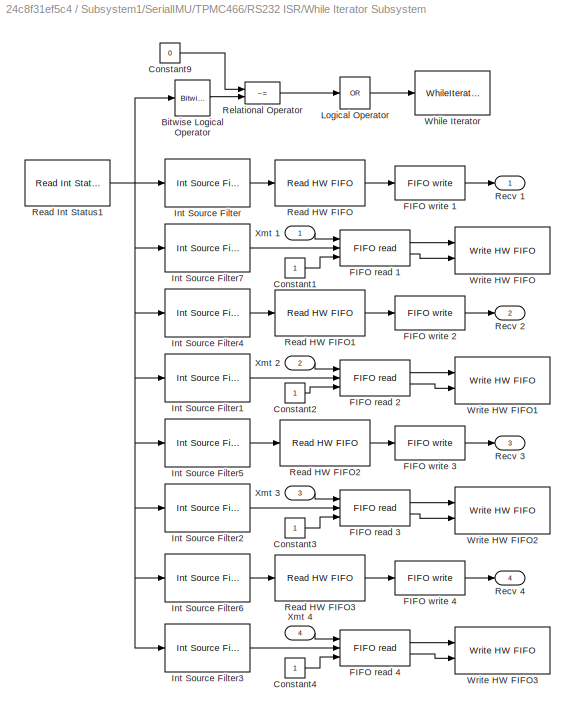
BLOCK [SubSystem] Subsystem1/SerialIMU/TPMC466/RS232 ISR/While Iterator Subsystem
  FunctionWithSeparateData = off
  MaskHideContents = off
  MinAlgLoopOccurrences = off
  Opaque = off
  Ports = [4, 4]
  PropExecContextOutsideSubsystem = off
  RTWSystemCode = Auto
  RequestExecContextInheritance = off
  TreatAsAtomicUnit = on
BLOCK [Reference] Subsystem1/SerialIMU/TPMC466/RS232 ISR/While Iterator Subsystem/Bitwise Logical Operator  REF=simulink/Logic and Bit
Operations/Bitwise
Operator
  BitMask = 'FF'
  BitMaskRealWorld = Stored Integer
  NumInputPorts = 1
  Ports = [1, 1]
  SourceBlock = simulink/Logic and Bit\nOperations/Bitwise\nOperator
  SourceType = Bitwise Operator
  UseBitMask = on
  logicop = AND
BLOCK [Constant] Subsystem1/SerialIMU/TPMC466/RS232 ISR/While Iterator Subsystem/Constant1
  OutDataTypeStr = uint32
BLOCK [Constant] Subsystem1/SerialIMU/TPMC466/RS232 ISR/While Iterator Subsystem/Constant2
  OutDataTypeStr = uint32
BLOCK [Constant] Subsystem1/SerialIMU/TPMC466/RS232 ISR/While Iterator Subsystem/Constant3
  OutDataTypeStr = uint32
BLOCK [Constant] Subsystem1/SerialIMU/TPMC466/RS232 ISR/While Iterator Subsystem/Constant4
  OutDataTypeStr = uint32
BLOCK [Constant] Subsystem1/SerialIMU/TPMC466/RS232 ISR/While Iterator Subsystem/Constant9
  OutDataTypeStr = uint32
  Value = 0
BLOCK [Reference] Subsystem1/SerialIMU/TPMC466/RS232 ISR/While Iterator Subsystem/FIFO read 1  REF=xpcseriallib/FIFO read 
  Ports = [3, 2]
  SourceBlock = xpcseriallib/FIFO read
  SourceType = Asynchronous FIFO Block: reader
  delimiter = 13
  enable = on
  enableout = on
  maxsize = 60
  minsize = 1
  outputtype = count+32 bit uint
  sampletime = -1
  usedelimiter = off
BLOCK [Reference] Subsystem1/SerialIMU/TPMC466/RS232 ISR/While Iterator Subsystem/FIFO read 2  REF=xpcseriallib/FIFO read 
  Ports = [3, 2]
  SourceBlock = xpcseriallib/FIFO read
  SourceType = Asynchronous FIFO Block: reader
  delimiter = 13
  enable = on
  enableout = on
  maxsize = 60
  minsize = 1
  outputtype = count+32 bit uint
  sampletime = -1
  usedelimiter = off
BLOCK [Reference] Subsystem1/SerialIMU/TPMC466/RS232 ISR/While Iterator Subsystem/FIFO read 3  REF=xpcseriallib/FIFO read 
  Ports = [3, 2]
  SourceBlock = xpcseriallib/FIFO read
  SourceType = Asynchronous FIFO Block: reader
  delimiter = 13
  enable = on
  enableout = on
  maxsize = 60
  minsize = 1
  outputtype = count+32 bit uint
  sampletime = -1
  usedelimiter = off
BLOCK [Reference] Subsystem1/SerialIMU/TPMC466/RS232 ISR/While Iterator Subsystem/FIFO read 4  REF=xpcseriallib/FIFO read 
  Ports = [3, 2]
  SourceBlock = xpcseriallib/FIFO read
  SourceType = Asynchronous FIFO Block: reader
  delimiter = 13
  enable = on
  enableout = on
  maxsize = 60
  minsize = 1
  outputtype = count+32 bit uint
  sampletime = -1
  usedelimiter = off
BLOCK [Reference] Subsystem1/SerialIMU/TPMC466/RS232 ISR/While Iterator Subsystem/FIFO write 1  REF=xpcseriallib/FIFO write 
  Ports = [1, 1]
  SourceBlock = xpcseriallib/FIFO write
  SourceType = Asynchronous FIFO Block: writer
  id = RCV channel 1, IRQ 9
  inputtype = count+32 bit uint
  present = off
  sampletime = -1
  size = 1024
BLOCK [Reference] Subsystem1/SerialIMU/TPMC466/RS232 ISR/While Iterator Subsystem/FIFO write 2  REF=xpcseriallib/FIFO write 
  Ports = [1, 1]
  SourceBlock = xpcseriallib/FIFO write
  SourceType = Asynchronous FIFO Block: writer
  id = RCV channel 2, IRQ 9
  inputtype = count+32 bit uint
  present = off
  sampletime = -1
  size = 1024
BLOCK [Reference] Subsystem1/SerialIMU/TPMC466/RS232 ISR/While Iterator Subsystem/FIFO write 3  REF=xpcseriallib/FIFO write 
  Ports = [1, 1]
  SourceBlock = xpcseriallib/FIFO write
  SourceType = Asynchronous FIFO Block: writer
  id = RCV channel 3, IRQ 9
  inputtype = count+32 bit uint
  present = off
  sampletime = -1
  size = 1024
BLOCK [Reference] Subsystem1/SerialIMU/TPMC466/RS232 ISR/While Iterator Subsystem/FIFO write 4  REF=xpcseriallib/FIFO write 
  Ports = [1, 1]
  SourceBlock = xpcseriallib/FIFO write
  SourceType = Asynchronous FIFO Block: writer
  id = RCV channel 4, IRQ 9
  inputtype = count+32 bit uint
  present = off
  sampletime = -1
  size = 1024
BLOCK [Reference] Subsystem1/SerialIMU/TPMC466/RS232 ISR/While Iterator Subsystem/Int Source Filter  REF=speedgoatlib/IO503/TEWS TPMC466  (lib defined in mdl_2b10c7445f81, mdl_649b3eec89a6, +4 more)
Internal blocks/Int Source Filter
  Ports = [1, 1]
  SourceBlock = speedgoatlib/IO503/TEWS TPMC466\nInternal blocks/Int Source Filter
  SourceType = int_source_filter_XR17D15x
  port = 1
  value = Receive data
BLOCK [Reference] Subsystem1/SerialIMU/TPMC466/RS232 ISR/While Iterator Subsystem/Int Source Filter1  REF=speedgoatlib/IO503/TEWS TPMC466  (lib defined in mdl_2b10c7445f81, mdl_649b3eec89a6, +4 more)
Internal blocks/Int Source Filter
  Ports = [1, 1]
  SourceBlock = speedgoatlib/IO503/TEWS TPMC466\nInternal blocks/Int Source Filter
  SourceType = int_source_filter_XR17D15x
  port = 2
  value = Transmitter empty
BLOCK [Reference] Subsystem1/SerialIMU/TPMC466/RS232 ISR/While Iterator Subsystem/Int Source Filter2  REF=speedgoatlib/IO503/TEWS TPMC466  (lib defined in mdl_2b10c7445f81, mdl_649b3eec89a6, +4 more)
Internal blocks/Int Source Filter
  Ports = [1, 1]
  SourceBlock = speedgoatlib/IO503/TEWS TPMC466\nInternal blocks/Int Source Filter
  SourceType = int_source_filter_XR17D15x
  port = 3
  value = Transmitter empty
BLOCK [Reference] Subsystem1/SerialIMU/TPMC466/RS232 ISR/While Iterator Subsystem/Int Source Filter3  REF=speedgoatlib/IO503/TEWS TPMC466  (lib defined in mdl_2b10c7445f81, mdl_649b3eec89a6, +4 more)
Internal blocks/Int Source Filter
  Ports = [1, 1]
  SourceBlock = speedgoatlib/IO503/TEWS TPMC466\nInternal blocks/Int Source Filter
  SourceType = int_source_filter_XR17D15x
  port = 4
  value = Transmitter empty
BLOCK [Reference] Subsystem1/SerialIMU/TPMC466/RS232 ISR/While Iterator Subsystem/Int Source Filter4  REF=speedgoatlib/IO503/TEWS TPMC466  (lib defined in mdl_2b10c7445f81, mdl_649b3eec89a6, +4 more)
Internal blocks/Int Source Filter
  Ports = [1, 1]
  SourceBlock = speedgoatlib/IO503/TEWS TPMC466\nInternal blocks/Int Source Filter
  SourceType = int_source_filter_XR17D15x
  port = 2
  value = Receive data
BLOCK [Reference] Subsystem1/SerialIMU/TPMC466/RS232 ISR/While Iterator Subsystem/Int Source Filter5  REF=speedgoatlib/IO503/TEWS TPMC466  (lib defined in mdl_2b10c7445f81, mdl_649b3eec89a6, +4 more)
Internal blocks/Int Source Filter
  Ports = [1, 1]
  SourceBlock = speedgoatlib/IO503/TEWS TPMC466\nInternal blocks/Int Source Filter
  SourceType = int_source_filter_XR17D15x
  port = 3
  value = Receive data
BLOCK [Reference] Subsystem1/SerialIMU/TPMC466/RS232 ISR/While Iterator Subsystem/Int Source Filter6  REF=speedgoatlib/IO503/TEWS TPMC466  (lib defined in mdl_2b10c7445f81, mdl_649b3eec89a6, +4 more)
Internal blocks/Int Source Filter
  Ports = [1, 1]
  SourceBlock = speedgoatlib/IO503/TEWS TPMC466\nInternal blocks/Int Source Filter
  SourceType = int_source_filter_XR17D15x
  port = 4
  value = Receive data
BLOCK [Reference] Subsystem1/SerialIMU/TPMC466/RS232 ISR/While Iterator Subsystem/Int Source Filter7  REF=speedgoatlib/IO503/TEWS TPMC466  (lib defined in mdl_2b10c7445f81, mdl_649b3eec89a6, +4 more)
Internal blocks/Int Source Filter
  Ports = [1, 1]
  SourceBlock = speedgoatlib/IO503/TEWS TPMC466\nInternal blocks/Int Source Filter
  SourceType = int_source_filter_XR17D15x
  port = 1
  value = Transmitter empty
BLOCK [Logic] Subsystem1/SerialIMU/TPMC466/RS232 ISR/While Iterator Subsystem/Logical Operator
  AllPortsSameDT = off
  Inputs = 1
  Operator = OR
  Ports = [1, 1]
BLOCK [Reference] Subsystem1/SerialIMU/TPMC466/RS232 ISR/While Iterator Subsystem/Read HW FIFO  REF=speedgoatlib/IO503/TEWS TPMC466  (lib defined in mdl_2b10c7445f81, mdl_649b3eec89a6, +4 more)
Internal blocks/Read HW FIFO
  Ports = [1, 1]
  SourceBlock = speedgoatlib/IO503/TEWS TPMC466\nInternal blocks/Read HW FIFO
  SourceType = read_hw_fifo_XR17D15x
  flush = on
  port = 1
  slot = subslot
BLOCK [Reference] Subsystem1/SerialIMU/TPMC466/RS232 ISR/While Iterator Subsystem/Read HW FIFO1  REF=speedgoatlib/IO503/TEWS TPMC466  (lib defined in mdl_2b10c7445f81, mdl_649b3eec89a6, +4 more)
Internal blocks/Read HW FIFO
  Ports = [1, 1]
  SourceBlock = speedgoatlib/IO503/TEWS TPMC466\nInternal blocks/Read HW FIFO
  SourceType = read_hw_fifo_XR17D15x
  flush = on
  port = 2
  slot = subslot
BLOCK [Reference] Subsystem1/SerialIMU/TPMC466/RS232 ISR/While Iterator Subsystem/Read HW FIFO2  REF=speedgoatlib/IO503/TEWS TPMC466  (lib defined in mdl_2b10c7445f81, mdl_649b3eec89a6, +4 more)
Internal blocks/Read HW FIFO
  Ports = [1, 1]
  SourceBlock = speedgoatlib/IO503/TEWS TPMC466\nInternal blocks/Read HW FIFO
  SourceType = read_hw_fifo_XR17D15x
  flush = on
  port = 3
  slot = subslot
BLOCK [Reference] Subsystem1/SerialIMU/TPMC466/RS232 ISR/While Iterator Subsystem/Read HW FIFO3  REF=speedgoatlib/IO503/TEWS TPMC466  (lib defined in mdl_2b10c7445f81, mdl_649b3eec89a6, +4 more)
Internal blocks/Read HW FIFO
  Ports = [1, 1]
  SourceBlock = speedgoatlib/IO503/TEWS TPMC466\nInternal blocks/Read HW FIFO
  SourceType = read_hw_fifo_XR17D15x
  flush = on
  port = 4
  slot = subslot
BLOCK [Reference] Subsystem1/SerialIMU/TPMC466/RS232 ISR/While Iterator Subsystem/Read Int Status1  REF=speedgoatlib/IO503/TEWS TPMC466  (lib defined in mdl_2b10c7445f81, mdl_649b3eec89a6, +4 more)
Internal blocks/Read Int Status
  Ports = [0, 1]
  SourceBlock = speedgoatlib/IO503/TEWS TPMC466\nInternal blocks/Read Int Status
  SourceType = read_int_status_XR17D15x
  slot = subslot
BLOCK [Outport] Subsystem1/SerialIMU/TPMC466/RS232 ISR/While Iterator Subsystem/Recv 1
  IconDisplay = Port number
  SourceOfInitialOutputValue = Input signal
BLOCK [Outport] Subsystem1/SerialIMU/TPMC466/RS232 ISR/While Iterator Subsystem/Recv 2
  IconDisplay = Port number
  Port = 2
  SourceOfInitialOutputValue = Input signal
BLOCK [Outport] Subsystem1/SerialIMU/TPMC466/RS232 ISR/While Iterator Subsystem/Recv 3
  IconDisplay = Port number
  Port = 3
  SourceOfInitialOutputValue = Input signal
BLOCK [Outport] Subsystem1/SerialIMU/TPMC466/RS232 ISR/While Iterator Subsystem/Recv 4
  IconDisplay = Port number
  Port = 4
  SourceOfInitialOutputValue = Input signal
BLOCK [RelationalOperator] Subsystem1/SerialIMU/TPMC466/RS232 ISR/While Iterator Subsystem/Relational Operator
  InputSameDT = off
  Operator = ~=
  Ports = [2, 1]
BLOCK [WhileIterator] Subsystem1/SerialIMU/TPMC466/RS232 ISR/While Iterator Subsystem/While Iterator
  MaxIters = 65
  Ports = [1]
  WhileBlockType = do-while
BLOCK [Reference] Subsystem1/SerialIMU/TPMC466/RS232 ISR/While Iterator Subsystem/Write HW FIFO  REF=speedgoatlib/IO503/TEWS TPMC466  (lib defined in mdl_2b10c7445f81, mdl_649b3eec89a6, +4 more)
Internal blocks/Write HW FIFO
  Ports = [2]
  SourceBlock = speedgoatlib/IO503/TEWS TPMC466\nInternal blocks/Write HW FIFO
  SourceType = write_hw_fifo_XR17D15x
  port = 1
  slot = subslot
BLOCK [Reference] Subsystem1/SerialIMU/TPMC466/RS232 ISR/While Iterator Subsystem/Write HW FIFO1  REF=speedgoatlib/IO503/TEWS TPMC466  (lib defined in mdl_2b10c7445f81, mdl_649b3eec89a6, +4 more)
Internal blocks/Write HW FIFO
  Ports = [2]
  SourceBlock = speedgoatlib/IO503/TEWS TPMC466\nInternal blocks/Write HW FIFO
  SourceType = write_hw_fifo_XR17D15x
  port = 2
  slot = subslot
BLOCK [Reference] Subsystem1/SerialIMU/TPMC466/RS232 ISR/While Iterator Subsystem/Write HW FIFO2  REF=speedgoatlib/IO503/TEWS TPMC466  (lib defined in mdl_2b10c7445f81, mdl_649b3eec89a6, +4 more)
Internal blocks/Write HW FIFO
  Ports = [2]
  SourceBlock = speedgoatlib/IO503/TEWS TPMC466\nInternal blocks/Write HW FIFO
  SourceType = write_hw_fifo_XR17D15x
  port = 3
  slot = subslot
BLOCK [Reference] Subsystem1/SerialIMU/TPMC466/RS232 ISR/While Iterator Subsystem/Write HW FIFO3  REF=speedgoatlib/IO503/TEWS TPMC466  (lib defined in mdl_2b10c7445f81, mdl_649b3eec89a6, +4 more)
Internal blocks/Write HW FIFO
  Ports = [2]
  SourceBlock = speedgoatlib/IO503/TEWS TPMC466\nInternal blocks/Write HW FIFO
  SourceType = write_hw_fifo_XR17D15x
  port = 4
  slot = subslot
BLOCK [Inport] Subsystem1/SerialIMU/TPMC466/RS232 ISR/While Iterator Subsystem/Xmt 1
  IconDisplay = Port number
BLOCK [Inport] Subsystem1/SerialIMU/TPMC466/RS232 ISR/While Iterator Subsystem/Xmt 2
  IconDisplay = Port number
  Port = 2
BLOCK [Inport] Subsystem1/SerialIMU/TPMC466/RS232 ISR/While Iterator Subsystem/Xmt 3
  IconDisplay = Port number
  Port = 3
BLOCK [Inport] Subsystem1/SerialIMU/TPMC466/RS232 ISR/While Iterator Subsystem/Xmt 4
  IconDisplay = Port number
  Port = 4
BLOCK [Inport] Subsystem1/SerialIMU/TPMC466/RS232 ISR/Xmt 1
  IconDisplay = Port number
BLOCK [Inport] Subsystem1/SerialIMU/TPMC466/RS232 ISR/Xmt 2
  IconDisplay = Port number
  Port = 2
BLOCK [Inport] Subsystem1/SerialIMU/TPMC466/RS232 ISR/Xmt 3
  IconDisplay = Port number
  Port = 3
BLOCK [Inport] Subsystem1/SerialIMU/TPMC466/RS232 ISR/Xmt 4
  IconDisplay = Port number
  Port = 4
BLOCK [TriggerPort] Subsystem1/SerialIMU/TPMC466/RS232 ISR/function
  Ports = []
  StatesWhenEnabling = held
  TriggerType = function-call
BLOCK [RateTransition] Subsystem1/SerialIMU/TPMC466/Rate Transition
  Deterministic = off
  Integrity = off
BLOCK [RateTransition] Subsystem1/SerialIMU/TPMC466/Rate Transition1
  Deterministic = off
  Integrity = off
  OutPortSampleTime = 0
BLOCK [RateTransition] Subsystem1/SerialIMU/TPMC466/Rate Transition2
  Deterministic = off
  Integrity = off
BLOCK [RateTransition] Subsystem1/SerialIMU/TPMC466/Rate Transition3
  Deterministic = off
  Integrity = off
  OutPortSampleTime = 0
BLOCK [RateTransition] Subsystem1/SerialIMU/TPMC466/Rate Transition4
  Deterministic = off
  Integrity = off
BLOCK [RateTransition] Subsystem1/SerialIMU/TPMC466/Rate Transition5
  Deterministic = off
  Integrity = off
BLOCK [RateTransition] Subsystem1/SerialIMU/TPMC466/Rate Transition6
  Deterministic = off
  Integrity = off
  OutPortSampleTime = 0
BLOCK [RateTransition] Subsystem1/SerialIMU/TPMC466/Rate Transition7
  Deterministic = off
  Integrity = off
  OutPortSampleTime = 0
BLOCK [Reference] Subsystem1/SerialIMU/TPMC466/Setup1  REF=speedgoatlib/IO503/TEWS TPMC466  (lib defined in mdl_2b10c7445f81, mdl_649b3eec89a6, +4 more)
Internal blocks/Setup 
  Ports = []
  SourceBlock = speedgoatlib/IO503/TEWS TPMC466\nInternal blocks/Setup
  SourceType = setup_XR17D15x
  bauddivisor = 1
  baudrate = 921600
  ctsmode = none
  mode8x = 16x (standard)
  nstop = 1
  parity = None
  port = 1
  prescale = off
  rlevel = quarter full (16)
  rs485delay = 1
  rs485mode = off
  slot = brdslot
  standard = on
  transceiver = RS422
  width = 8
  xoff = 19
  xon = 17
  xonoff = none
BLOCK [Reference] Subsystem1/SerialIMU/TPMC466/Setup2  REF=speedgoatlib/IO503/TEWS TPMC466  (lib defined in mdl_2b10c7445f81, mdl_649b3eec89a6, +4 more)
Internal blocks/Setup 
  Ports = []
  SourceBlock = speedgoatlib/IO503/TEWS TPMC466\nInternal blocks/Setup
  SourceType = setup_XR17D15x
  bauddivisor = 1
  baudrate = 2764800
  ctsmode = none
  mode8x = 16x (standard)
  nstop = 1
  parity = None
  port = 2
  prescale = off
  rlevel = quarter full (16)
  rs485delay = 1
  rs485mode = on
  slot = brdslot
  standard = on
  transceiver = RS485 half-duplex
  width = 8
  xoff = 19
  xon = 17
  xonoff = XON/XOFF
BLOCK [Reference] Subsystem1/SerialIMU/TPMC466/Setup3  REF=speedgoatlib/IO503/TEWS TPMC466  (lib defined in mdl_2b10c7445f81, mdl_649b3eec89a6, +4 more)
Internal blocks/Setup 
  Ports = []
  SourceBlock = speedgoatlib/IO503/TEWS TPMC466\nInternal blocks/Setup
  SourceType = setup_XR17D15x
  bauddivisor = 1
  baudrate = 115200
  ctsmode = none
  mode8x = 16x (standard)
  nstop = 1
  parity = None
  port = 3
  prescale = off
  rlevel = half full (32)
  rs485delay = 0
  rs485mode = off
  slot = brdslot
  standard = on
  transceiver = RS485 half-duplex
  width = 8
  xoff = 19
  xon = 17
  xonoff = none
BLOCK [Reference] Subsystem1/SerialIMU/TPMC466/Setup4  REF=speedgoatlib/IO503/TEWS TPMC466  (lib defined in mdl_2b10c7445f81, mdl_649b3eec89a6, +4 more)
Internal blocks/Setup 
  Ports = []
  SourceBlock = speedgoatlib/IO503/TEWS TPMC466\nInternal blocks/Setup
  SourceType = setup_XR17D15x
  bauddivisor = 1
  baudrate = 115200
  ctsmode = none
  mode8x = 16x (standard)
  nstop = 1
  parity = None
  port = 4
  prescale = off
  rlevel = half full (32)
  rs485delay = 0
  rs485mode = off
  slot = brdslot
  standard = on
  transceiver = RS485 half-duplex
  width = 8
  xoff = 19
  xon = 17
  xonoff = none
BLOCK [Outport] Subsystem1/SerialIMU/Temperature
  IconDisplay = Port number
  Port = 8
BLOCK [Terminator] Subsystem1/SerialIMU/Terminator1
BLOCK [Terminator] Subsystem1/SerialIMU/Terminator2
BLOCK [Terminator] Subsystem1/SerialIMU/Terminator3
BLOCK [UnitDelay] Subsystem1/SerialIMU/Unit Delay1
  InitialCondition = [0; 0]
  InputProcessing = Elements as channels (sample based)
  SampleTime = -1
BLOCK [UnitDelay] Subsystem1/SerialIMU/Unit Delay2
  InitialCondition = zeros(3,3)
  InputProcessing = Elements as channels (sample based)
  SampleTime = -1
BLOCK [SubSystem] Subsystem1/SerialIMU/UpdateOrientation
  FunctionWithSeparateData = off
  MaskHideContents = off
  MinAlgLoopOccurrences = off
  Opaque = off
  Ports = [3, 8]
  PropExecContextOutsideSubsystem = off
  RTWSystemCode = Auto
  RequestExecContextInheritance = off
BLOCK [Outport] Subsystem1/SerialIMU/UpdateOrientation/Acceleration
  IconDisplay = Port number
  InitialOutput = zeros(3,1)
  Port = 4
BLOCK [Assignment] Subsystem1/SerialIMU/UpdateOrientation/Assignment
  IndexOptions = Index vector (port)
  Indices = 1
  OutputSizes = 1
  Ports = [3, 1]
BLOCK [Reference] Subsystem1/SerialIMU/UpdateOrientation/Compare To Constant1  REF=simulink/Logic and Bit
Operations/Compare
To Constant
  OutDataTypeStr = uint8
  Ports = [1, 1]
  SourceBlock = simulink/Logic and Bit\nOperations/Compare\nTo Constant
  SourceType = Compare To Constant
  ZeroCross = on
  const = 1
  relop = ==
BLOCK [Outport] Subsystem1/SerialIMU/UpdateOrientation/DeltaAngle
  IconDisplay = Port number
  InitialOutput = zeros(3,1)
  Port = 3
BLOCK [SubSystem] Subsystem1/SerialIMU/UpdateOrientation/EstimateOrientation
  ErrorFcn = Stateflow.Translate.translate
  FunctionWithSeparateData = off
  MaskHideContents = off
  MinAlgLoopOccurrences = off
  Opaque = off
  PermitHierarchicalResolution = ExplicitOnly
  Ports = [9, 4]
  PropExecContextOutsideSubsystem = off
  RTWSystemCode = Auto
  RequestExecContextInheritance = off
  SFBlockType = MATLAB Function
  TreatAsAtomicUnit = on
BLOCK [Demux] Subsystem1/SerialIMU/UpdateOrientation/EstimateOrientation/ Demux 
  Outputs = 1
  Ports = [1, 1]
BLOCK [S-Function] Subsystem1/SerialIMU/UpdateOrientation/EstimateOrientation/ SFunction 
  EnableBusSupport = on
  FunctionName = sf_sfun
  PortCounts = [9 5]
  Ports = [9, 5]
  Tag = Stateflow S-Function MicrostrainIMUTest02 22
BLOCK [Terminator] Subsystem1/SerialIMU/UpdateOrientation/EstimateOrientation/ Terminator 
BLOCK [Inport] Subsystem1/SerialIMU/UpdateOrientation/EstimateOrientation/Acceleration
  IconDisplay = Port number
  Port = 2
BLOCK [Outport] Subsystem1/SerialIMU/UpdateOrientation/EstimateOrientation/Ak
  IconDisplay = Port number
  Port = 3
BLOCK [Inport] Subsystem1/SerialIMU/UpdateOrientation/EstimateOrientation/Akm1
  IconDisplay = Port number
  Port = 8
BLOCK [Inport] Subsystem1/SerialIMU/UpdateOrientation/EstimateOrientation/DeltaAngle
  IconDisplay = Port number
BLOCK [Inport] Subsystem1/SerialIMU/UpdateOrientation/EstimateOrientation/Reset
  IconDisplay = Port number
  Port = 5
BLOCK [Outport] Subsystem1/SerialIMU/UpdateOrientation/EstimateOrientation/Rk
  IconDisplay = Port number
BLOCK [Inport] Subsystem1/SerialIMU/UpdateOrientation/EstimateOrientation/Rkm1
  IconDisplay = Port number
  Port = 6
BLOCK [Outport] Subsystem1/SerialIMU/UpdateOrientation/EstimateOrientation/Seqk
  IconDisplay = Port number
  Port = 4
BLOCK [Inport] Subsystem1/SerialIMU/UpdateOrientation/EstimateOrientation/Seqkm1
  IconDisplay = Port number
  Port = 9
BLOCK [Inport] Subsystem1/SerialIMU/UpdateOrientation/EstimateOrientation/Sequence
  IconDisplay = Port number
  Port = 4
BLOCK [Inport] Subsystem1/SerialIMU/UpdateOrientation/EstimateOrientation/Status
  IconDisplay = Port number
  Port = 3
BLOCK [Outport] Subsystem1/SerialIMU/UpdateOrientation/EstimateOrientation/wk
  IconDisplay = Port number
  Port = 2
BLOCK [Inport] Subsystem1/SerialIMU/UpdateOrientation/EstimateOrientation/wkm1
  IconDisplay = Port number
  Port = 7
BLOCK [Inport] Subsystem1/SerialIMU/UpdateOrientation/FIFO
  IconDisplay = Port number
BLOCK [Reference] Subsystem1/SerialIMU/UpdateOrientation/FIFO bin read   REF=xpcseriallib/FIFO bin read 
  Ports = [1, 1]
  SourceBlock = xpcseriallib/FIFO bin read
  SourceType = Asynchronous FIFO Block: reader
  enable = off
  header = {char([254 129 255 85])}
  hold = Zero output if no new data
  lengths = [36]
  maxsize = 36
  outputtype = 8 bit uint null terminated
  sampletime = -1
BLOCK [ForIterator] Subsystem1/SerialIMU/UpdateOrientation/For Iterator
  Ports = [0, 1]
BLOCK [From] Subsystem1/SerialIMU/UpdateOrientation/From1
  GotoTag = Reset
BLOCK [From] Subsystem1/SerialIMU/UpdateOrientation/From2
  GotoTag = Iter
BLOCK [Goto] Subsystem1/SerialIMU/UpdateOrientation/Goto
  GotoTag = Reset
BLOCK [Goto] Subsystem1/SerialIMU/UpdateOrientation/Goto1
  GotoTag = Iter
BLOCK [SubSystem] Subsystem1/SerialIMU/UpdateOrientation/MATLAB Function
  ErrorFcn = Stateflow.Translate.translate
  FunctionWithSeparateData = off
  MaskHideContents = off
  MinAlgLoopOccurrences = off
  Opaque = off
  PermitHierarchicalResolution = ExplicitOnly
  Ports = [1, 6]
  PropExecContextOutsideSubsystem = off
  RTWSystemCode = Auto
  RequestExecContextInheritance = off
  SFBlockType = MATLAB Function
  TreatAsAtomicUnit = on
BLOCK [Demux] Subsystem1/SerialIMU/UpdateOrientation/MATLAB Function/ Demux 
  Outputs = 1
  Ports = [1, 1]
BLOCK [S-Function] Subsystem1/SerialIMU/UpdateOrientation/MATLAB Function/ SFunction 
  EnableBusSupport = on
  FunctionName = sf_sfun
  PortCounts = [1 7]
  Ports = [1, 7]
  Tag = Stateflow S-Function MicrostrainIMUTest02 23
BLOCK [Terminator] Subsystem1/SerialIMU/UpdateOrientation/MATLAB Function/ Terminator 
BLOCK [Outport] Subsystem1/SerialIMU/UpdateOrientation/MATLAB Function/Acceleration
  IconDisplay = Port number
  Port = 2
BLOCK [Inport] Subsystem1/SerialIMU/UpdateOrientation/MATLAB Function/P
  IconDisplay = Port number
BLOCK [Outport] Subsystem1/SerialIMU/UpdateOrientation/MATLAB Function/Rotation
  IconDisplay = Port number
BLOCK [Outport] Subsystem1/SerialIMU/UpdateOrientation/MATLAB Function/Sequence
  IconDisplay = Port number
  Port = 4
BLOCK [Outport] Subsystem1/SerialIMU/UpdateOrientation/MATLAB Function/Status
  IconDisplay = Port number
  Port = 3
BLOCK [Outport] Subsystem1/SerialIMU/UpdateOrientation/MATLAB Function/Temperature
  IconDisplay = Port number
  Port = 5
BLOCK [Outport] Subsystem1/SerialIMU/UpdateOrientation/MATLAB Function/Valid
  IconDisplay = Port number
  Port = 6
BLOCK [Product] Subsystem1/SerialIMU/UpdateOrientation/Product
  InputSameDT = off
  OutDataTypeStr = Inherit: Inherit via internal rule
  Ports = [2, 1]
  SaturateOnIntegerOverflow = off
BLOCK [Inport] Subsystem1/SerialIMU/UpdateOrientation/Reset
  IconDisplay = Port number
  Port = 2
BLOCK [Outport] Subsystem1/SerialIMU/UpdateOrientation/Rk
  IconDisplay = Port number
  InitialOutput = zeros(3,3)
BLOCK [Outport] Subsystem1/SerialIMU/UpdateOrientation/Sequence
  IconDisplay = Port number
  InitialOutput = [0; 0; 0; 0; 0]
  Port = 6
BLOCK [Outport] Subsystem1/SerialIMU/UpdateOrientation/Status
  IconDisplay = Port number
  InitialOutput = 0
  Port = 5
BLOCK [Outport] Subsystem1/SerialIMU/UpdateOrientation/Temperature
  IconDisplay = Port number
  InitialOutput = 0
  Port = 7
BLOCK [UnitDelay] Subsystem1/SerialIMU/UpdateOrientation/Unit Delay
  InitialCondition = [0; 0; 0]
  InputProcessing = Elements as channels (sample based)
  SampleTime = -1
BLOCK [UnitDelay] Subsystem1/SerialIMU/UpdateOrientation/Unit Delay1
  InitialCondition = zeros(3,3)
  InputProcessing = Elements as channels (sample based)
  SampleTime = -1
BLOCK [UnitDelay] Subsystem1/SerialIMU/UpdateOrientation/Unit Delay2
  InitialCondition = [0; 0; 0]
  InputProcessing = Elements as channels (sample based)
  SampleTime = -1
BLOCK [UnitDelay] Subsystem1/SerialIMU/UpdateOrientation/Unit Delay3
  InputProcessing = Elements as channels (sample based)
  SampleTime = -1
BLOCK [Outport] Subsystem1/SerialIMU/UpdateOrientation/Valid
  IconDisplay = Port number
  InitialOutput = 0
  Port = 8
BLOCK [Inport] Subsystem1/SerialIMU/UpdateOrientation/Zero
  IconDisplay = Port number
  Port = 3
BLOCK [Outport] Subsystem1/SerialIMU/UpdateOrientation/wk
  IconDisplay = Port number
  InitialOutput = zeros(3,1)
  Port = 2
BLOCK [Outport] Subsystem1/SerialIMU/Valid
  IconDisplay = Port number
  Port = 9
BLOCK [Constant] Subsystem1/SerialIMU/Zero
  Value = [0; 0; 0; 0; 0]
BLOCK [Outport] Subsystem1/Status
  IconDisplay = Port number
  Port = 7
BLOCK [Outport] Subsystem1/Temperature
  IconDisplay = Port number
  Port = 9
BLOCK [UnitDelay] Subsystem1/Unit Delay1
  InitialCondition = [0; 0]
  InputProcessing = Elements as channels (sample based)
  SampleTime = -1
BLOCK [UnitDelay] Subsystem1/Unit Delay2
  InitialCondition = zeros(3,3)
  InputProcessing = Elements as channels (sample based)
  SampleTime = -1
BLOCK [SubSystem] Subsystem1/UpdateOrientation
  FunctionWithSeparateData = off
  MaskHideContents = off
  MinAlgLoopOccurrences = off
  Opaque = off
  Ports = [2, 8]
  PropExecContextOutsideSubsystem = off
  RTWSystemCode = Auto
  RequestExecContextInheritance = off
BLOCK [Outport] Subsystem1/UpdateOrientation/Acceleration
  IconDisplay = Port number
  InitialOutput = zeros(3,1)
  Port = 4
BLOCK [Assignment] Subsystem1/UpdateOrientation/Assignment
  IndexOptions = Index vector (port)
  Indices = 1
  OutputSizes = 1
  Ports = [3, 1]
BLOCK [Reference] Subsystem1/UpdateOrientation/Compare To Constant1  REF=simulink/Logic and Bit
Operations/Compare
To Constant
  OutDataTypeStr = uint8
  Ports = [1, 1]
  SourceBlock = simulink/Logic and Bit\nOperations/Compare\nTo Constant
  SourceType = Compare To Constant
  ZeroCross = on
  const = 1
  relop = ==
BLOCK [Outport] Subsystem1/UpdateOrientation/DeltaAngle
  IconDisplay = Port number
  InitialOutput = zeros(3,1)
  Port = 3
BLOCK [SubSystem] Subsystem1/UpdateOrientation/EstimateOrientation
  ErrorFcn = Stateflow.Translate.translate
  FunctionWithSeparateData = off
  MaskHideContents = off
  MinAlgLoopOccurrences = off
  Opaque = off
  PermitHierarchicalResolution = ExplicitOnly
  Ports = [9, 4]
  PropExecContextOutsideSubsystem = off
  RTWSystemCode = Auto
  RequestExecContextInheritance = off
  SFBlockType = MATLAB Function
  TreatAsAtomicUnit = on
BLOCK [Demux] Subsystem1/UpdateOrientation/EstimateOrientation/ Demux 
  Outputs = 1
  Ports = [1, 1]
BLOCK [S-Function] Subsystem1/UpdateOrientation/EstimateOrientation/ SFunction 
  EnableBusSupport = on
  FunctionName = sf_sfun
  PortCounts = [9 5]
  Ports = [9, 5]
  Tag = Stateflow S-Function MicrostrainIMUTest02 2
BLOCK [Terminator] Subsystem1/UpdateOrientation/EstimateOrientation/ Terminator 
BLOCK [Inport] Subsystem1/UpdateOrientation/EstimateOrientation/Acceleration
  IconDisplay = Port number
  Port = 2
BLOCK [Outport] Subsystem1/UpdateOrientation/EstimateOrientation/Ak
  IconDisplay = Port number
  Port = 3
BLOCK [Inport] Subsystem1/UpdateOrientation/EstimateOrientation/Akm1
  IconDisplay = Port number
  Port = 8
BLOCK [Inport] Subsystem1/UpdateOrientation/EstimateOrientation/DeltaAngle
  IconDisplay = Port number
BLOCK [Inport] Subsystem1/UpdateOrientation/EstimateOrientation/Reset
  IconDisplay = Port number
  Port = 5
BLOCK [Outport] Subsystem1/UpdateOrientation/EstimateOrientation/Rk
  IconDisplay = Port number
BLOCK [Inport] Subsystem1/UpdateOrientation/EstimateOrientation/Rkm1
  IconDisplay = Port number
  Port = 6
BLOCK [Outport] Subsystem1/UpdateOrientation/EstimateOrientation/Seqk
  IconDisplay = Port number
  Port = 4
BLOCK [Inport] Subsystem1/UpdateOrientation/EstimateOrientation/Seqkm1
  IconDisplay = Port number
  Port = 9
BLOCK [Inport] Subsystem1/UpdateOrientation/EstimateOrientation/Sequence
  IconDisplay = Port number
  Port = 4
BLOCK [Inport] Subsystem1/UpdateOrientation/EstimateOrientation/Status
  IconDisplay = Port number
  Port = 3
BLOCK [Outport] Subsystem1/UpdateOrientation/EstimateOrientation/wk
  IconDisplay = Port number
  Port = 2
BLOCK [Inport] Subsystem1/UpdateOrientation/EstimateOrientation/wkm1
  IconDisplay = Port number
  Port = 7
BLOCK [ForIterator] Subsystem1/UpdateOrientation/For Iterator
  Ports = [0, 1]
BLOCK [From] Subsystem1/UpdateOrientation/From1
  GotoTag = Reset
BLOCK [From] Subsystem1/UpdateOrientation/From2
  GotoTag = Iter
BLOCK [Goto] Subsystem1/UpdateOrientation/Goto
  GotoTag = Reset
BLOCK [Goto] Subsystem1/UpdateOrientation/Goto1
  GotoTag = Iter
BLOCK [Product] Subsystem1/UpdateOrientation/Product
  InputSameDT = off
  OutDataTypeStr = Inherit: Inherit via internal rule
  Ports = [2, 1]
  SaturateOnIntegerOverflow = off
BLOCK [Inport] Subsystem1/UpdateOrientation/Reset
  IconDisplay = Port number
BLOCK [Outport] Subsystem1/UpdateOrientation/Rk
  IconDisplay = Port number
  InitialOutput = zeros(3,3)
BLOCK [Outport] Subsystem1/UpdateOrientation/Sequence
  IconDisplay = Port number
  InitialOutput = [0; 0; 0; 0; 0]
  Port = 6
BLOCK [Outport] Subsystem1/UpdateOrientation/Status
  IconDisplay = Port number
  InitialOutput = 0
  Port = 5
BLOCK [Outport] Subsystem1/UpdateOrientation/Temperature
  IconDisplay = Port number
  InitialOutput = 0
  Port = 7
BLOCK [UnitDelay] Subsystem1/UpdateOrientation/Unit Delay
  InitialCondition = [0; 0; 0]
  InputProcessing = Elements as channels (sample based)
  SampleTime = -1
BLOCK [UnitDelay] Subsystem1/UpdateOrientation/Unit Delay1
  InitialCondition = zeros(3,3)
  InputProcessing = Elements as channels (sample based)
  SampleTime = -1
BLOCK [UnitDelay] Subsystem1/UpdateOrientation/Unit Delay2
  InitialCondition = [0; 0; 0]
  InputProcessing = Elements as channels (sample based)
  SampleTime = -1
BLOCK [UnitDelay] Subsystem1/UpdateOrientation/Unit Delay3
  InputProcessing = Elements as channels (sample based)
  SampleTime = -1
BLOCK [Outport] Subsystem1/UpdateOrientation/Valid
  IconDisplay = Port number
  InitialOutput = 0
  Port = 8
BLOCK [Inport] Subsystem1/UpdateOrientation/Zero
  IconDisplay = Port number
  Port = 2
BLOCK [Outport] Subsystem1/UpdateOrientation/wk
  IconDisplay = Port number
  InitialOutput = zeros(3,1)
  Port = 2
BLOCK [Outport] Subsystem1/Valid
  IconDisplay = Port number
  Port = 10
BLOCK [Constant] Subsystem1/Zero
  Value = [0; 0; 0; 0; 0]
BLOCK [Outport] Timer
  IconDisplay = Port number
  Port = 12
ANNOTATION Subsystem/Process Orientation Matrix and Ang Rates: ARE NEEDED TO CONVERT FROM THE IMU COORDINATES
ANNOTATION Subsystem/Process Orientation Matrix and Ang Rates: CHOICE OF THE MISALIGNMENT PARAMETERS ABOVE.
ANNOTATION Subsystem/Process Orientation Matrix and Ang Rates: NOTE: THE ORDERING OF THE IMU RATES AND THE NEGATION
ANNOTATION Subsystem/Process Orientation Matrix and Ang Rates: THIS MAPPING IS VALID ONLY FOR ONE PARTICULAR
ANNOTATION Subsystem/Process Orientation Matrix and Ang Rates: TO ROBOT COORDINATES.
ANNOTATION Subsystem/Reset: EtherCATStatus is a vector of four elements: [ErrVal1 ErrVal2 MasterState DCState]. Here we just check that MasterState==8 (Operational state).
LINE IMUCommand:1 -> Subsystem:2
LINE MedullaCommand:1 -> Subsystem:1
LINE Reshape:1 -> Rk:1
LINE Subsystem/Counter2:1 -> Subsystem/Goto111:1
LINE Subsystem/Counter2:2 -> Subsystem/Terminator2:1
LINE Subsystem/Data Type Conversion152:1 -> Subsystem/Counter:1
LINE Subsystem/Data Type Conversion154:1 -> Subsystem/ErrorFlags:1
LINE Subsystem/Data Type Conversion161:1 -> Subsystem/State:1
LINE Subsystem/Data Type Conversion162:1 -> Subsystem/ID:1
LINE Subsystem/Data Type Conversion97:1 -> Subsystem/Goto146:1
LINE Subsystem/EtherCAT Init:1 -> Subsystem/Data Type Conversion97:1
LINE Subsystem/EtherCAT Rx Frames:1 -> Subsystem/Terminator1:1
LINE Subsystem/From178:1 -> Subsystem/EtherCATStatus:1
LINE Subsystem/From179:1 -> Subsystem/Reset:2
LINE Subsystem/From1:1 -> Subsystem/IMU_Medulla:2
LINE Subsystem/IMU Command:1 -> Subsystem/IMU_Medulla:3
LINE Subsystem/IMU_Medulla/Data Type Conversion1:1 -> Subsystem/IMU_Medulla/EtherCAT Tx Var 2:1
LINE Subsystem/IMU_Medulla/Data Type Conversion3:1 -> Subsystem/IMU_Medulla/EtherCAT Tx Var :1
LINE Subsystem/IMU_Medulla/Data Type Conversion4:1 -> Subsystem/IMU_Medulla/EtherCAT Tx Var 1:1
LINE Subsystem/IMU_Medulla/EtherCAT Rx Var 10:1 -> Subsystem/IMU_Medulla/XAngRate_uint32:1
LINE Subsystem/IMU_Medulla/EtherCAT Rx Var 11:1 -> Subsystem/IMU_Medulla/YAccel_uint32:1
LINE Subsystem/IMU_Medulla/EtherCAT Rx Var 12:1 -> Subsystem/IMU_Medulla/ZAccel_uint32:1
LINE Subsystem/IMU_Medulla/EtherCAT Rx Var 13:1 -> Subsystem/IMU_Medulla/ZAngRate_uint32:1
LINE Subsystem/IMU_Medulla/EtherCAT Rx Var 14:1 -> Subsystem/IMU_Medulla/YAngRate_uint32:1
LINE Subsystem/IMU_Medulla/EtherCAT Rx Var 15:1 -> Subsystem/IMU_Medulla/ErrorFlags:1
LINE Subsystem/IMU_Medulla/EtherCAT Rx Var 16:1 -> Subsystem/IMU_Medulla/ID:1
LINE Subsystem/IMU_Medulla/EtherCAT Rx Var 17:1 -> Subsystem/IMU_Medulla/Counter:1
LINE Subsystem/IMU_Medulla/EtherCAT Rx Var 18:1 -> Subsystem/IMU_Medulla/State:1
LINE Subsystem/IMU_Medulla/EtherCAT Rx Var 19:1 -> Subsystem/IMU_Medulla/M31_uint32:1
LINE Subsystem/IMU_Medulla/EtherCAT Rx Var 1:1 -> Subsystem/IMU_Medulla/M12_uint32:1
LINE Subsystem/IMU_Medulla/EtherCAT Rx Var 2:1 -> Subsystem/IMU_Medulla/M13_uint32:1
LINE Subsystem/IMU_Medulla/EtherCAT Rx Var 3:1 -> Subsystem/IMU_Medulla/M22_uint32:1
LINE Subsystem/IMU_Medulla/EtherCAT Rx Var 4:1 -> Subsystem/IMU_Medulla/M23_uint32:1
LINE Subsystem/IMU_Medulla/EtherCAT Rx Var 5:1 -> Subsystem/IMU_Medulla/M21_uint32:1
LINE Subsystem/IMU_Medulla/EtherCAT Rx Var 6:1 -> Subsystem/IMU_Medulla/M11_uint32:1
LINE Subsystem/IMU_Medulla/EtherCAT Rx Var 7:1 -> Subsystem/IMU_Medulla/M32_uint32:1
LINE Subsystem/IMU_Medulla/EtherCAT Rx Var 8:1 -> Subsystem/IMU_Medulla/M33_uint32:1
LINE Subsystem/IMU_Medulla/EtherCAT Rx Var 9:1 -> Subsystem/IMU_Medulla/XAccel_uint32:1
LINE Subsystem/IMU_Medulla/MedullaCmd:1 -> Subsystem/IMU_Medulla/Data Type Conversion3:1
LINE Subsystem/IMU_Medulla/MedullaCounter:1 -> Subsystem/IMU_Medulla/Data Type Conversion4:1
LINE Subsystem/IMU_Medulla/iMUCommand:1 -> Subsystem/IMU_Medulla/Data Type Conversion1:1
LINE Subsystem/IMU_Medulla:1 -> Subsystem/Mux2:1
LINE Subsystem/IMU_Medulla:10 -> Subsystem/Mux3:1
LINE Subsystem/IMU_Medulla:11 -> Subsystem/Mux3:2
LINE Subsystem/IMU_Medulla:12 -> Subsystem/Mux3:3
LINE Subsystem/IMU_Medulla:13 -> Subsystem/Mux4:1
LINE Subsystem/IMU_Medulla:14 -> Subsystem/Mux4:2
LINE Subsystem/IMU_Medulla:15 -> Subsystem/Mux4:3
LINE Subsystem/IMU_Medulla:16 -> Subsystem/Data Type Conversion162:1
LINE Subsystem/IMU_Medulla:17 -> Subsystem/Data Type Conversion161:1
LINE Subsystem/IMU_Medulla:18 -> Subsystem/Data Type Conversion152:1
LINE Subsystem/IMU_Medulla:19 -> Subsystem/Data Type Conversion154:1
LINE Subsystem/IMU_Medulla:2 -> Subsystem/Mux2:2
LINE Subsystem/IMU_Medulla:3 -> Subsystem/Mux2:3
LINE Subsystem/IMU_Medulla:4 -> Subsystem/Mux2:4
LINE Subsystem/IMU_Medulla:5 -> Subsystem/Mux2:5
LINE Subsystem/IMU_Medulla:6 -> Subsystem/Mux2:6
LINE Subsystem/IMU_Medulla:7 -> Subsystem/Mux2:7
LINE Subsystem/IMU_Medulla:8 -> Subsystem/Mux2:8
LINE Subsystem/IMU_Medulla:9 -> Subsystem/Mux2:9
LINE Subsystem/MATLAB Function:1 -> Subsystem/Rk1:1
LINE Subsystem/MATLAB Function:2 -> Subsystem/AngularRate:1
LINE Subsystem/MATLAB Function:3 -> Subsystem/Accel:1
LINE Subsystem/MATLAB Function:4 -> Subsystem/timer:1
LINE Subsystem/Medulla Command:1 -> Subsystem/IMU_Medulla:1
LINE Subsystem/Mux1:1 -> Subsystem/Process Orientation Matrix and Ang Rates:1
NET Subsystem/Mux2:1 -> Subsystem/MATLAB Function:1, Subsystem/Mux1:1
NET Subsystem/Mux3:1 -> Subsystem/MATLAB Function:2, Subsystem/Mux1:2
NET Subsystem/Mux4:1 -> Subsystem/MATLAB Function:3, Subsystem/Mux1:3
LINE Subsystem/Process Orientation Matrix and Ang Rates/Convert_unit32_to_single:1 -> Subsystem/Process Orientation Matrix and Ang Rates/Demux:1
NET Subsystem/Process Orientation Matrix and Ang Rates/Data Type Conversion10:1 -> Subsystem/Process Orientation Matrix and Ang Rates/Mux1:1, Subsystem/Process Orientation Matrix and Ang Rates/Mux3:1
NET Subsystem/Process Orientation Matrix and Ang Rates/Data Type Conversion11:1 -> Subsystem/Process Orientation Matrix and Ang Rates/Mux1:2, Subsystem/Process Orientation Matrix and Ang Rates/Mux3:2
NET Subsystem/Process Orientation Matrix and Ang Rates/Data Type Conversion12:1 -> Subsystem/Process Orientation Matrix and Ang Rates/Mux1:3, Subsystem/Process Orientation Matrix and Ang Rates/Mux3:3
NET Subsystem/Process Orientation Matrix and Ang Rates/Data Type Conversion13:1 -> Subsystem/Process Orientation Matrix and Ang Rates/Mux2:1, Subsystem/Process Orientation Matrix and Ang Rates/Mux3:13
NET Subsystem/Process Orientation Matrix and Ang Rates/Data Type Conversion14:1 -> Subsystem/Process Orientation Matrix and Ang Rates/Mux2:2, Subsystem/Process Orientation Matrix and Ang Rates/Mux3:14
NET Subsystem/Process Orientation Matrix and Ang Rates/Data Type Conversion15:1 -> Subsystem/Process Orientation Matrix and Ang Rates/Mux2:3, Subsystem/Process Orientation Matrix and Ang Rates/Mux3:15
LINE Subsystem/Process Orientation Matrix and Ang Rates/Data Type Conversion16:1 -> Subsystem/Process Orientation Matrix and Ang Rates/Mux3:16
LINE Subsystem/Process Orientation Matrix and Ang Rates/Data Type Conversion17:1 -> Subsystem/Process Orientation Matrix and Ang Rates/Mux3:17
LINE Subsystem/Process Orientation Matrix and Ang Rates/Data Type Conversion18:1 -> Subsystem/Process Orientation Matrix and Ang Rates/Mux3:18
NET Subsystem/Process Orientation Matrix and Ang Rates/Data Type Conversion1:1 -> Subsystem/Process Orientation Matrix and Ang Rates/M_WI_to_ZYX_Euler_Angles:2, Subsystem/Process Orientation Matrix and Ang Rates/Mux3:4
NET Subsystem/Process Orientation Matrix and Ang Rates/Data Type Conversion2:1 -> Subsystem/Process Orientation Matrix and Ang Rates/M_WI_to_ZYX_Euler_Angles:3, Subsystem/Process Orientation Matrix and Ang Rates/Mux3:5
NET Subsystem/Process Orientation Matrix and Ang Rates/Data Type Conversion3:1 -> Subsystem/Process Orientation Matrix and Ang Rates/M_WI_to_ZYX_Euler_Angles:4, Subsystem/Process Orientation Matrix and Ang Rates/Mux3:6
NET Subsystem/Process Orientation Matrix and Ang Rates/Data Type Conversion4:1 -> Subsystem/Process Orientation Matrix and Ang Rates/M_WI_to_ZYX_Euler_Angles:5, Subsystem/Process Orientation Matrix and Ang Rates/Mux3:7
NET Subsystem/Process Orientation Matrix and Ang Rates/Data Type Conversion5:1 -> Subsystem/Process Orientation Matrix and Ang Rates/M_WI_to_ZYX_Euler_Angles:6, Subsystem/Process Orientation Matrix and Ang Rates/Mux3:8
NET Subsystem/Process Orientation Matrix and Ang Rates/Data Type Conversion6:1 -> Subsystem/Process Orientation Matrix and Ang Rates/M_WI_to_ZYX_Euler_Angles:7, Subsystem/Process Orientation Matrix and Ang Rates/Mux3:9
NET Subsystem/Process Orientation Matrix and Ang Rates/Data Type Conversion7:1 -> Subsystem/Process Orientation Matrix and Ang Rates/M_WI_to_ZYX_Euler_Angles:8, Subsystem/Process Orientation Matrix and Ang Rates/Mux3:10
NET Subsystem/Process Orientation Matrix and Ang Rates/Data Type Conversion8:1 -> Subsystem/Process Orientation Matrix and Ang Rates/M_WI_to_ZYX_Euler_Angles:9, Subsystem/Process Orientation Matrix and Ang Rates/Mux3:11
NET Subsystem/Process Orientation Matrix and Ang Rates/Data Type Conversion9:1 -> Subsystem/Process Orientation Matrix and Ang Rates/M_WI_to_ZYX_Euler_Angles:10, Subsystem/Process Orientation Matrix and Ang Rates/Mux3:12
LINE Subsystem/Process Orientation Matrix and Ang Rates/Demux:1 -> Subsystem/Process Orientation Matrix and Ang Rates/Data Type Conversion1:1
LINE Subsystem/Process Orientation Matrix and Ang Rates/Demux:10 -> Subsystem/Process Orientation Matrix and Ang Rates/Data Type Conversion13:1
LINE Subsystem/Process Orientation Matrix and Ang Rates/Demux:11 -> Subsystem/Process Orientation Matrix and Ang Rates/Data Type Conversion14:1
LINE Subsystem/Process Orientation Matrix and Ang Rates/Demux:12 -> Subsystem/Process Orientation Matrix and Ang Rates/Data Type Conversion15:1
LINE Subsystem/Process Orientation Matrix and Ang Rates/Demux:13 -> Subsystem/Process Orientation Matrix and Ang Rates/Data Type Conversion16:1
LINE Subsystem/Process Orientation Matrix and Ang Rates/Demux:14 -> Subsystem/Process Orientation Matrix and Ang Rates/Data Type Conversion17:1
LINE Subsystem/Process Orientation Matrix and Ang Rates/Demux:15 -> Subsystem/Process Orientation Matrix and Ang Rates/Data Type Conversion18:1
LINE Subsystem/Process Orientation Matrix and Ang Rates/Demux:2 -> Subsystem/Process Orientation Matrix and Ang Rates/Data Type Conversion2:1
LINE Subsystem/Process Orientation Matrix and Ang Rates/Demux:3 -> Subsystem/Process Orientation Matrix and Ang Rates/Data Type Conversion3:1
LINE Subsystem/Process Orientation Matrix and Ang Rates/Demux:4 -> Subsystem/Process Orientation Matrix and Ang Rates/Data Type Conversion4:1
LINE Subsystem/Process Orientation Matrix and Ang Rates/Demux:5 -> Subsystem/Process Orientation Matrix and Ang Rates/Data Type Conversion5:1
LINE Subsystem/Process Orientation Matrix and Ang Rates/Demux:6 -> Subsystem/Process Orientation Matrix and Ang Rates/Data Type Conversion6:1
LINE Subsystem/Process Orientation Matrix and Ang Rates/Demux:7 -> Subsystem/Process Orientation Matrix and Ang Rates/Data Type Conversion7:1
LINE Subsystem/Process Orientation Matrix and Ang Rates/Demux:8 -> Subsystem/Process Orientation Matrix and Ang Rates/Data Type Conversion8:1
LINE Subsystem/Process Orientation Matrix and Ang Rates/Demux:9 -> Subsystem/Process Orientation Matrix and Ang Rates/Data Type Conversion9:1
LINE Subsystem/Process Orientation Matrix and Ang Rates/Gain:1 -> Subsystem/Process Orientation Matrix and Ang Rates/IMU_Rates:1
LINE Subsystem/Process Orientation Matrix and Ang Rates/M_WI_to_ZYX_Euler_Angles:1 -> Subsystem/Process Orientation Matrix and Ang Rates/Data Type Conversion10:1
LINE Subsystem/Process Orientation Matrix and Ang Rates/M_WI_to_ZYX_Euler_Angles:2 -> Subsystem/Process Orientation Matrix and Ang Rates/Data Type Conversion11:1
LINE Subsystem/Process Orientation Matrix and Ang Rates/M_WI_to_ZYX_Euler_Angles:3 -> Subsystem/Process Orientation Matrix and Ang Rates/Data Type Conversion12:1
LINE Subsystem/Process Orientation Matrix and Ang Rates/MedullaOutput:1 -> Subsystem/Process Orientation Matrix and Ang Rates/Convert_unit32_to_single:1
LINE Subsystem/Process Orientation Matrix and Ang Rates/MisalignmentMatrixParams:1 -> Subsystem/Process Orientation Matrix and Ang Rates/M_WI_to_ZYX_Euler_Angles:1
LINE Subsystem/Process Orientation Matrix and Ang Rates/Mux1:1 -> Subsystem/Process Orientation Matrix and Ang Rates/IMU_Angles:1
LINE Subsystem/Process Orientation Matrix and Ang Rates/Mux2:1 -> Subsystem/Process Orientation Matrix and Ang Rates/Gain:1
LINE Subsystem/Process Orientation Matrix and Ang Rates/Mux3:1 -> Subsystem/Process Orientation Matrix and Ang Rates/IMU_data:1
LINE Subsystem/Process Orientation Matrix and Ang Rates:1 -> Subsystem/EulerAngles:1
LINE Subsystem/Process Orientation Matrix and Ang Rates:2 -> Subsystem/EulerAngleDerivatives:1
LINE Subsystem/Process Orientation Matrix and Ang Rates:3 -> Subsystem/Data:1
LINE Subsystem/Reset/Clock1:1 -> Subsystem/Reset/Compare To Constant:1
LINE Subsystem/Reset/Compare To Constant1:1 -> Subsystem/Reset/Logical Operator:3
LINE Subsystem/Reset/Compare To Constant:1 -> Subsystem/Reset/Logical Operator:1
LINE Subsystem/Reset/EtherCATStatus:1 -> Subsystem/Reset/Selector:1
LINE Subsystem/Reset/Logical Operator:1 -> Subsystem/Reset/Reset:1
LINE Subsystem/Reset/ResetIn:1 -> Subsystem/Reset/Logical Operator:2
LINE Subsystem/Reset/Selector:1 -> Subsystem/Reset/Compare To Constant1:1
LINE Subsystem/Reset:1 -> Subsystem/Goto141:1
LINE Subsystem/ResetDAQ:1 -> Subsystem/Reset:1
LINE Subsystem1/ComputeEulerAngles:1 -> Subsystem1/EulerAngles:1
LINE Subsystem1/ComputeEulerAngles:2 -> Subsystem1/EulerAngleDerivatives:1
LINE Subsystem1/ComputeEulerAngles:3 -> Subsystem1/Reshape:1
LINE Subsystem1/ComputeEulerAngles:4 -> Subsystem1/Unit Delay2:1
LINE Subsystem1/ComputeEulerAngles:5 -> Subsystem1/Unit Delay1:1
LINE Subsystem1/From1:1 -> Subsystem1/UpdateOrientation:1
LINE Subsystem1/From:1 -> Subsystem1/Logical Operator:1
LINE Subsystem1/In2:1 -> Subsystem1/SerialIMU:1
LINE Subsystem1/In3:1 -> Subsystem1/SerialIMU:2
LINE Subsystem1/Logical Operator:1 -> Subsystem1/ComputeEulerAngles:4
LINE Subsystem1/RCal:1 -> Subsystem1/ComputeEulerAngles:3
LINE Subsystem1/ResetYaw:1 -> Subsystem1/Logical Operator:2
LINE Subsystem1/Reshape:1 -> Subsystem1/Rk:1
LINE Subsystem1/SerialIMU/ComputeEulerAngles:1 -> Subsystem1/SerialIMU/EulerAngles:1
LINE Subsystem1/SerialIMU/ComputeEulerAngles:2 -> Subsystem1/SerialIMU/EulerAngleDerivatives:1
LINE Subsystem1/SerialIMU/ComputeEulerAngles:3 -> Subsystem1/SerialIMU/Reshape:1
LINE Subsystem1/SerialIMU/ComputeEulerAngles:4 -> Subsystem1/SerialIMU/Unit Delay2:1
LINE Subsystem1/SerialIMU/ComputeEulerAngles:5 -> Subsystem1/SerialIMU/Unit Delay1:1
LINE Subsystem1/SerialIMU/From1:1 -> Subsystem1/SerialIMU/UpdateOrientation:2
LINE Subsystem1/SerialIMU/From:1 -> Subsystem1/SerialIMU/Logical Operator:1
LINE Subsystem1/SerialIMU/Ground1:1 -> Subsystem1/SerialIMU/TPMC466:3
LINE Subsystem1/SerialIMU/Ground2:1 -> Subsystem1/SerialIMU/TPMC466:4
LINE Subsystem1/SerialIMU/Ground3:1 -> Subsystem1/SerialIMU/TPMC466:2
LINE Subsystem1/SerialIMU/Ground4:1 -> Subsystem1/SerialIMU/TPMC466:1
LINE Subsystem1/SerialIMU/Logical Operator:1 -> Subsystem1/SerialIMU/ComputeEulerAngles:4
LINE Subsystem1/SerialIMU/RCal:1 -> Subsystem1/SerialIMU/ComputeEulerAngles:3
LINE Subsystem1/SerialIMU/Reset:1 -> Subsystem1/SerialIMU/Goto:1
LINE Subsystem1/SerialIMU/ResetYaw:1 -> Subsystem1/SerialIMU/Logical Operator:2
LINE Subsystem1/SerialIMU/Reshape:1 -> Subsystem1/SerialIMU/Rk:1
LINE Subsystem1/SerialIMU/TPMC466:1 -> Subsystem1/SerialIMU/UpdateOrientation:1
LINE Subsystem1/SerialIMU/TPMC466:2 -> Subsystem1/SerialIMU/Terminator1:1
LINE Subsystem1/SerialIMU/TPMC466:3 -> Subsystem1/SerialIMU/Terminator2:1
LINE Subsystem1/SerialIMU/TPMC466:4 -> Subsystem1/SerialIMU/Terminator3:1
LINE Subsystem1/SerialIMU/Unit Delay1:1 -> Subsystem1/SerialIMU/ComputeEulerAngles:6
LINE Subsystem1/SerialIMU/Unit Delay2:1 -> Subsystem1/SerialIMU/ComputeEulerAngles:5
LINE Subsystem1/SerialIMU/UpdateOrientation/Assignment:1 -> Subsystem1/SerialIMU/UpdateOrientation/Sequence:1
LINE Subsystem1/SerialIMU/UpdateOrientation/Compare To Constant1:1 -> Subsystem1/SerialIMU/UpdateOrientation/Product:2
NET Subsystem1/SerialIMU/UpdateOrientation/EstimateOrientation:1 -> Subsystem1/SerialIMU/UpdateOrientation/Rk:1, Subsystem1/SerialIMU/UpdateOrientation/Unit Delay1:1
NET Subsystem1/SerialIMU/UpdateOrientation/EstimateOrientation:2 -> Subsystem1/SerialIMU/UpdateOrientation/Unit Delay2:1, Subsystem1/SerialIMU/UpdateOrientation/wk:1
LINE Subsystem1/SerialIMU/UpdateOrientation/EstimateOrientation:3 -> Subsystem1/SerialIMU/UpdateOrientation/Unit Delay:1
LINE Subsystem1/SerialIMU/UpdateOrientation/EstimateOrientation:4 -> Subsystem1/SerialIMU/UpdateOrientation/Unit Delay3:1
LINE Subsystem1/SerialIMU/UpdateOrientation/FIFO bin read :1 -> Subsystem1/SerialIMU/UpdateOrientation/MATLAB Function:1
LINE Subsystem1/SerialIMU/UpdateOrientation/FIFO:1 -> Subsystem1/SerialIMU/UpdateOrientation/FIFO bin read :1
LINE Subsystem1/SerialIMU/UpdateOrientation/For Iterator:1 -> Subsystem1/SerialIMU/UpdateOrientation/Goto1:1
LINE Subsystem1/SerialIMU/UpdateOrientation/From1:1 -> Subsystem1/SerialIMU/UpdateOrientation/EstimateOrientation:5
LINE Subsystem1/SerialIMU/UpdateOrientation/From2:1 -> Subsystem1/SerialIMU/UpdateOrientation/Assignment:3
NET Subsystem1/SerialIMU/UpdateOrientation/MATLAB Function:1 -> Subsystem1/SerialIMU/UpdateOrientation/DeltaAngle:1, Subsystem1/SerialIMU/UpdateOrientation/EstimateOrientation:1
NET Subsystem1/SerialIMU/UpdateOrientation/MATLAB Function:2 -> Subsystem1/SerialIMU/UpdateOrientation/Acceleration:1, Subsystem1/SerialIMU/UpdateOrientation/EstimateOrientation:2
NET Subsystem1/SerialIMU/UpdateOrientation/MATLAB Function:3 -> Subsystem1/SerialIMU/UpdateOrientation/Product:1, Subsystem1/SerialIMU/UpdateOrientation/Status:1
NET Subsystem1/SerialIMU/UpdateOrientation/MATLAB Function:4 -> Subsystem1/SerialIMU/UpdateOrientation/Assignment:2, Subsystem1/SerialIMU/UpdateOrientation/EstimateOrientation:4
LINE Subsystem1/SerialIMU/UpdateOrientation/MATLAB Function:5 -> Subsystem1/SerialIMU/UpdateOrientation/Temperature:1
NET Subsystem1/SerialIMU/UpdateOrientation/MATLAB Function:6 -> Subsystem1/SerialIMU/UpdateOrientation/Compare To Constant1:1, Subsystem1/SerialIMU/UpdateOrientation/Valid:1
LINE Subsystem1/SerialIMU/UpdateOrientation/Product:1 -> Subsystem1/SerialIMU/UpdateOrientation/EstimateOrientation:3
LINE Subsystem1/SerialIMU/UpdateOrientation/Reset:1 -> Subsystem1/SerialIMU/UpdateOrientation/Goto:1
LINE Subsystem1/SerialIMU/UpdateOrientation/Unit Delay1:1 -> Subsystem1/SerialIMU/UpdateOrientation/EstimateOrientation:6
LINE Subsystem1/SerialIMU/UpdateOrientation/Unit Delay2:1 -> Subsystem1/SerialIMU/UpdateOrientation/EstimateOrientation:7
LINE Subsystem1/SerialIMU/UpdateOrientation/Unit Delay3:1 -> Subsystem1/SerialIMU/UpdateOrientation/EstimateOrientation:9
LINE Subsystem1/SerialIMU/UpdateOrientation/Unit Delay:1 -> Subsystem1/SerialIMU/UpdateOrientation/EstimateOrientation:8
LINE Subsystem1/SerialIMU/UpdateOrientation/Zero:1 -> Subsystem1/SerialIMU/UpdateOrientation/Assignment:1
LINE Subsystem1/SerialIMU/UpdateOrientation:1 -> Subsystem1/SerialIMU/ComputeEulerAngles:1
LINE Subsystem1/SerialIMU/UpdateOrientation:2 -> Subsystem1/SerialIMU/ComputeEulerAngles:2
LINE Subsystem1/SerialIMU/UpdateOrientation:3 -> Subsystem1/SerialIMU/DeltaAngle:1
LINE Subsystem1/SerialIMU/UpdateOrientation:4 -> Subsystem1/SerialIMU/Acceleration:1
LINE Subsystem1/SerialIMU/UpdateOrientation:5 -> Subsystem1/SerialIMU/Status:1
LINE Subsystem1/SerialIMU/UpdateOrientation:6 -> Subsystem1/SerialIMU/Sequence:1
LINE Subsystem1/SerialIMU/UpdateOrientation:7 -> Subsystem1/SerialIMU/Temperature:1
LINE Subsystem1/SerialIMU/UpdateOrientation:8 -> Subsystem1/SerialIMU/Valid:1
LINE Subsystem1/SerialIMU/Zero:1 -> Subsystem1/SerialIMU/UpdateOrientation:3
LINE Subsystem1/SerialIMU:1 -> Subsystem1/Out11:1
LINE Subsystem1/SerialIMU:2 -> Subsystem1/Out12:1
LINE Subsystem1/SerialIMU:3 -> Subsystem1/Out13:1
LINE Subsystem1/SerialIMU:4 -> Subsystem1/Out14:1
LINE Subsystem1/SerialIMU:5 -> Subsystem1/Out15:1
LINE Subsystem1/SerialIMU:6 -> Subsystem1/Out16:1
LINE Subsystem1/SerialIMU:7 -> Subsystem1/Out17:1
LINE Subsystem1/SerialIMU:8 -> Subsystem1/Out18:1
LINE Subsystem1/SerialIMU:9 -> Subsystem1/Out19:1
LINE Subsystem1/Unit Delay1:1 -> Subsystem1/ComputeEulerAngles:6
LINE Subsystem1/Unit Delay2:1 -> Subsystem1/ComputeEulerAngles:5
LINE Subsystem1/UpdateOrientation/Assignment:1 -> Subsystem1/UpdateOrientation/Sequence:1
LINE Subsystem1/UpdateOrientation/Compare To Constant1:1 -> Subsystem1/UpdateOrientation/Product:2
NET Subsystem1/UpdateOrientation/EstimateOrientation:1 -> Subsystem1/UpdateOrientation/Rk:1, Subsystem1/UpdateOrientation/Unit Delay1:1
NET Subsystem1/UpdateOrientation/EstimateOrientation:2 -> Subsystem1/UpdateOrientation/Unit Delay2:1, Subsystem1/UpdateOrientation/wk:1
LINE Subsystem1/UpdateOrientation/EstimateOrientation:3 -> Subsystem1/UpdateOrientation/Unit Delay:1
LINE Subsystem1/UpdateOrientation/EstimateOrientation:4 -> Subsystem1/UpdateOrientation/Unit Delay3:1
LINE Subsystem1/UpdateOrientation/For Iterator:1 -> Subsystem1/UpdateOrientation/Goto1:1
LINE Subsystem1/UpdateOrientation/From1:1 -> Subsystem1/UpdateOrientation/EstimateOrientation:5
LINE Subsystem1/UpdateOrientation/From2:1 -> Subsystem1/UpdateOrientation/Assignment:3
LINE Subsystem1/UpdateOrientation/Product:1 -> Subsystem1/UpdateOrientation/EstimateOrientation:3
LINE Subsystem1/UpdateOrientation/Reset:1 -> Subsystem1/UpdateOrientation/Goto:1
LINE Subsystem1/UpdateOrientation/Unit Delay1:1 -> Subsystem1/UpdateOrientation/EstimateOrientation:6
LINE Subsystem1/UpdateOrientation/Unit Delay2:1 -> Subsystem1/UpdateOrientation/EstimateOrientation:7
LINE Subsystem1/UpdateOrientation/Unit Delay3:1 -> Subsystem1/UpdateOrientation/EstimateOrientation:9
LINE Subsystem1/UpdateOrientation/Unit Delay:1 -> Subsystem1/UpdateOrientation/EstimateOrientation:8
LINE Subsystem1/UpdateOrientation/Zero:1 -> Subsystem1/UpdateOrientation/Assignment:1
LINE Subsystem1/UpdateOrientation:1 -> Subsystem1/ComputeEulerAngles:1
LINE Subsystem1/UpdateOrientation:2 -> Subsystem1/ComputeEulerAngles:2
LINE Subsystem1/UpdateOrientation:3 -> Subsystem1/DeltaAngle:1
LINE Subsystem1/UpdateOrientation:4 -> Subsystem1/Acceleration:1
LINE Subsystem1/UpdateOrientation:5 -> Subsystem1/Status:1
LINE Subsystem1/UpdateOrientation:6 -> Subsystem1/Sequence:1
LINE Subsystem1/UpdateOrientation:7 -> Subsystem1/Temperature:1
LINE Subsystem1/UpdateOrientation:8 -> Subsystem1/Valid:1
LINE Subsystem1/Zero:1 -> Subsystem1/UpdateOrientation:2
LINE Subsystem:1 -> EulerAngles:1
LINE Subsystem:10 -> ErrorFlags:1
LINE Subsystem:11 -> EtherCATStatus:1
LINE Subsystem:12 -> Timer:1
LINE Subsystem:2 -> EulerAngleDerivatives:1
LINE Subsystem:3 -> Data:1
LINE Subsystem:4 -> Reshape:1
LINE Subsystem:5 -> AngularRate:1
LINE Subsystem:6 -> Accel:1
LINE Subsystem:7 -> ID:1
LINE Subsystem:8 -> State:1
LINE Subsystem:9 -> Counter:1
note: NET lines group one-source signal fan-out (src -> all destinations, sorted); 1:1 wires keep LINE
